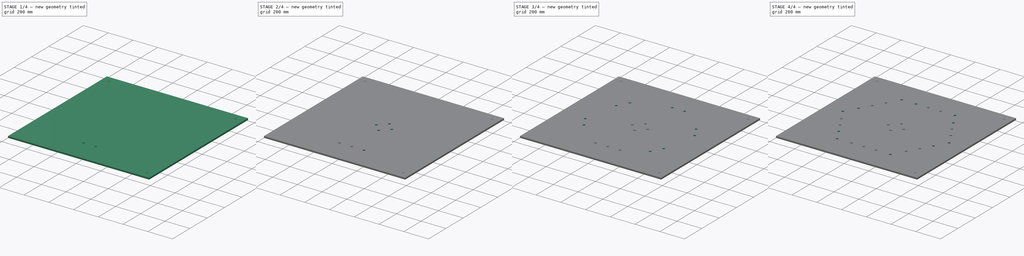
[diagram: build sequence overview — one tinted view per stage of 4, left to right]
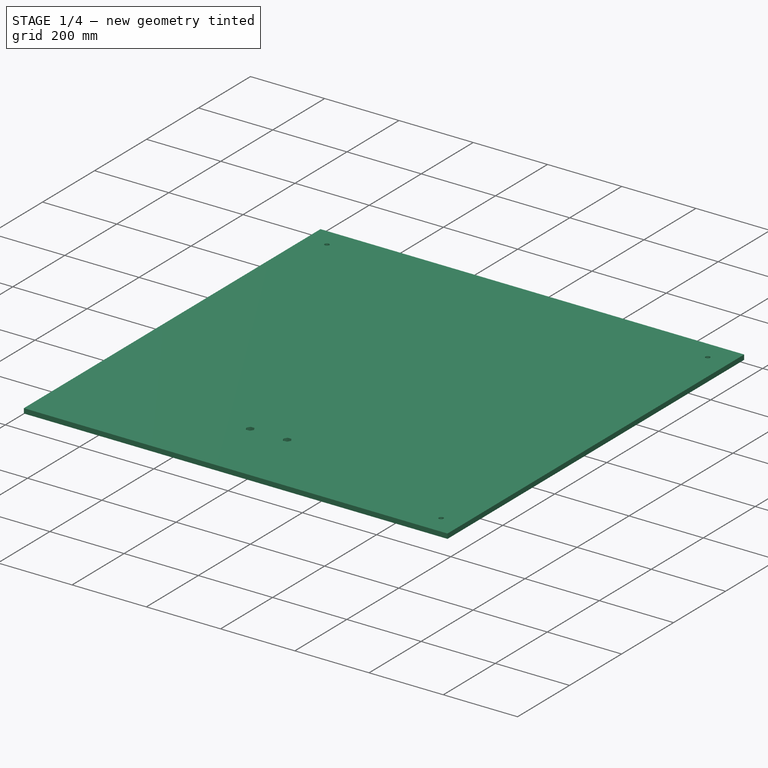
[diagram: stage 1 of 4 — iso view after this stage's code; geometry added in this stage tinted green]
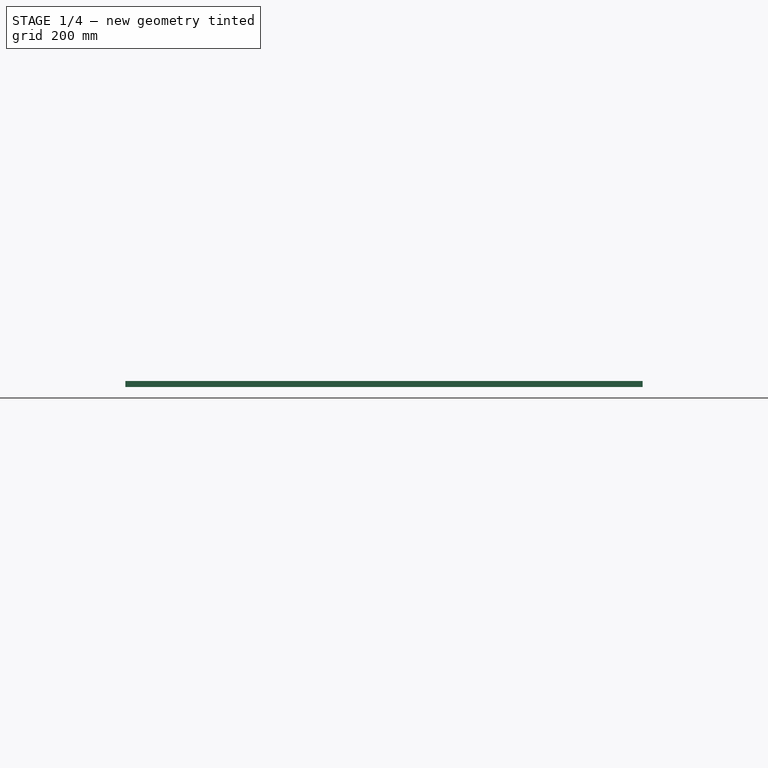
[diagram: stage 1 of 4 — front view after this stage's code; geometry added in this stage tinted green]
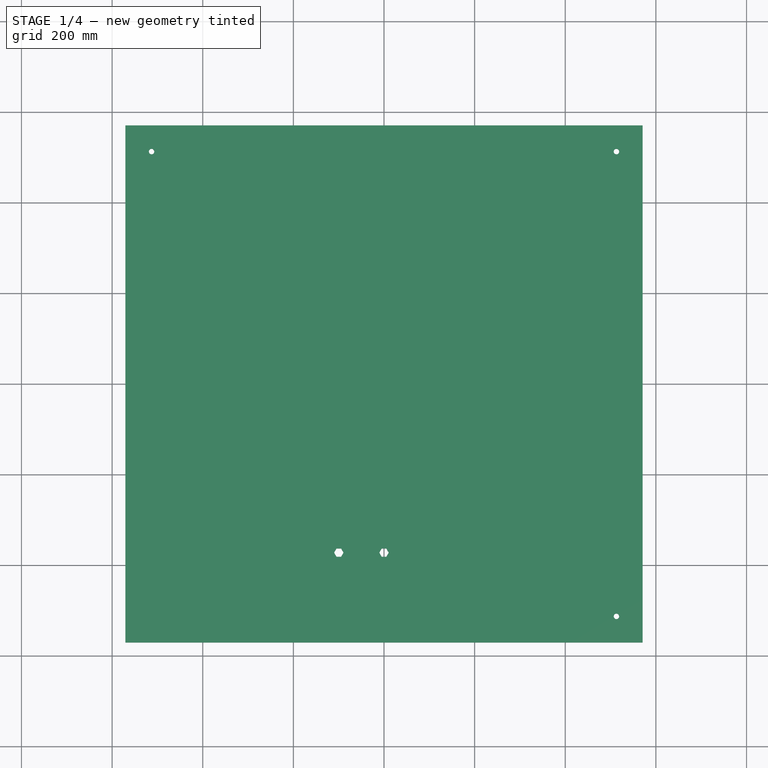
[diagram: stage 1 of 4 — top view after this stage's code; geometry added in this stage tinted green]
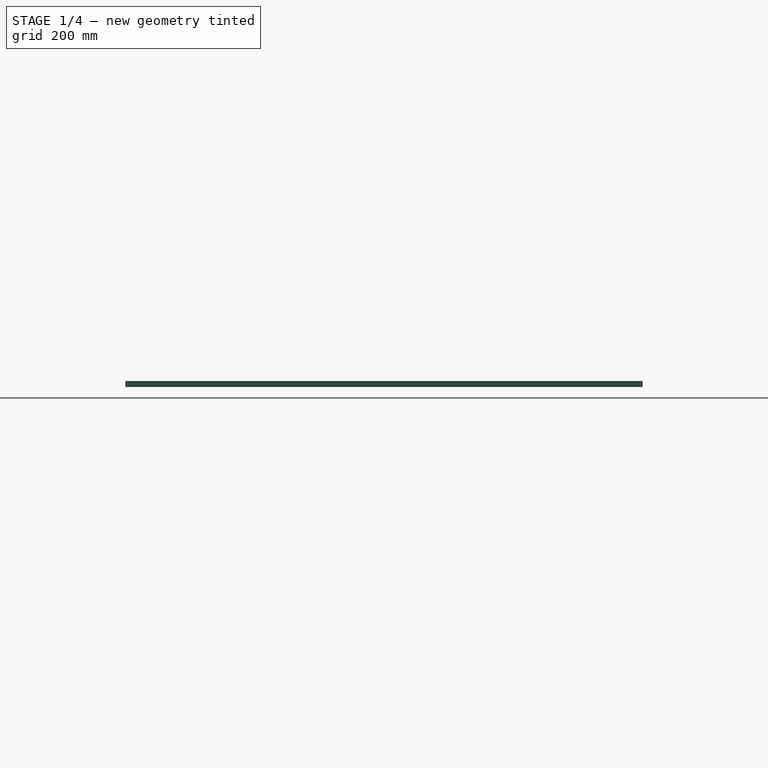
[diagram: stage 1 of 4 — right view after this stage's code; geometry added in this stage tinted green]
FCSTD DOCUMENT  (FreeCAD 1.0R39109 (Git))
Label: Stator_Mold_BoltHeadLayer_Hexagonal
License: All rights reserved
LicenseURL: http://en.wikipedia.org/wiki/All_rights_reserved
objects: App::Link×21, Part::FeaturePython×15, App::Part×6, Sketcher::SketchObject×5, PartDesign::Pocket×5, PartDesign::PolarPattern×5, PartDesign::Plane×1, PartDesign::SubShapeBinder×1, PartDesign::FeatureBase×1, Spreadsheet::Sheet×1, PartDesign::Body×1
note: 40 computed .brp shape members not serialized (recipe doc carries the construction recipe); baked Part::Feature solids carry a one-line shape summary decoded from their .brp
EXTERNAL_REF file=Stator_Mold_Base.FCStd obj=PocketBody
EXTERNAL_REF file=../../../Master_of_Puppets.FCStd obj=Alternator
EXTERNAL_REF file=../../../Master_of_Puppets.FCStd obj=Fastener
EXTERNAL_REF file=../../../Master_of_Puppets.FCStd obj=Spreadsheet
EXTERNAL_REF file=../../../Fasteners/Fastener_Bolt_StatorMold.FCStd obj=Binder
EXTERNAL_REF file=../../../Fasteners/Fastener_HexNut_StatorMold.FCStd obj=Binder
EXTERNAL_REF file=../../../Fasteners/Fastener_Washer_StatorMold.FCStd obj=Tube

FEATURE [PartDesign::Plane] DatumPlane001  label="DatumPlane"
  AttachmentOffset = pos=(0,0,13) rot=(0,0,1;0rad)
  AttachmentSupport = -> [XY_Plane]
  Length = 60
  MapMode = 5
  Placement = pos=(0,0,13) rot=(0,0,1;0rad)
  ResizeMode = 0
  Width = 60
  expr: .AttachmentOffset.Base.z = Spreadsheet.StatorThickness
FEATURE [Sketcher::SketchObject] Sketch006  label="FirstOuterBoltSketch"
  ArcFitTolerance = 0
  AttachmentSupport = -> [DatumPlane001]
  FullyConstrained = true
  MakeInternals = false
  MapMode = 5
  Placement = pos=(0,0,13) rot=(0,0,1;0rad)
  expr: Constraints[48] = Spreadsheet.LengthMiddleHoles
  expr: Constraints[52] = Spreadsheet.Inradius
  sketch-geometry (21):
    g0: LineSegment StartX=-94.545 StartY=-363.237 StartZ=0 EndX=-104.935 EndY=-363.237 EndZ=0
    g1: LineSegment StartX=-104.935 StartY=-363.237 StartZ=0 EndX=-110.13 EndY=-372.235 EndZ=0
    g2: LineSegment StartX=-110.13 StartY=-372.235 StartZ=0 EndX=-104.935 EndY=-381.233 EndZ=0
    g3: LineSegment StartX=-104.935 StartY=-381.233 StartZ=0 EndX=-94.545 EndY=-381.233 EndZ=0
    g4: LineSegment StartX=-94.545 StartY=-381.233 StartZ=0 EndX=-89.35 EndY=-372.235 EndZ=0
    g5: LineSegment StartX=-89.35 StartY=-372.235 StartZ=0 EndX=-94.545 EndY=-363.237 EndZ=0
    g6: Circle [constr] CenterX=-99.74 CenterY=-372.235 CenterZ=0 NormalX=0 NormalY=0 NormalZ=1 AngleXU=0 Radius=10.39
    g7: LineSegment [constr] StartX=-104.935 StartY=-363.237 StartZ=0 EndX=-99.74 EndY=-372.235 EndZ=0
    g8: LineSegment [constr] StartX=-99.74 StartY=-372.235 StartZ=0 EndX=-94.545 EndY=-381.233 EndZ=0
    g9: LineSegment [constr] StartX=-104.935 StartY=-381.233 StartZ=0 EndX=-99.74 EndY=-372.235 EndZ=0
    g10: LineSegment [constr] StartX=-99.74 StartY=-372.235 StartZ=0 EndX=-94.545 EndY=-363.237 EndZ=0
    g11: LineSegment [constr] StartX=-110.13 StartY=-372.235 StartZ=0 EndX=-99.74 EndY=-372.235 EndZ=0
    g12: LineSegment [constr] StartX=-99.74 StartY=-372.235 StartZ=0 EndX=-89.35 EndY=-372.235 EndZ=0
    g13: LineSegment [constr] StartX=214.91 StartY=372.235 StartZ=0 EndX=-214.91 EndY=372.235 EndZ=0
    g14: LineSegment [constr] StartX=-214.91 StartY=372.235 StartZ=0 EndX=-429.82 EndY=5.68e-14 EndZ=0
    g15: LineSegment [constr] StartX=-429.82 StartY=3.35e-14 StartZ=0 EndX=-214.91 EndY=-372.235 EndZ=0
    g16: LineSegment [constr] StartX=-214.91 StartY=-372.235 StartZ=0 EndX=214.91 EndY=-372.235 EndZ=0
    g17: LineSegment [constr] StartX=214.91 StartY=-372.235 StartZ=0 EndX=429.82 EndY=5.68e-14 EndZ=0
    g18: LineSegment [constr] StartX=429.82 StartY=3.35e-14 StartZ=0 EndX=214.91 EndY=372.235 EndZ=0
    g19: Circle [constr] CenterX=0 CenterY=0 CenterZ=0 NormalX=0 NormalY=0 NormalZ=1 AngleXU=0 Radius=429.82
    g20: LineSegment [constr] StartX=0 StartY=0 StartZ=0 EndX=-99.74 EndY=-372.235 EndZ=0
  constraints (51):
    c: Coincident(g0,g1)
    c: Coincident(g1,g2)
    c: Coincident(g2,g3)
    c: Coincident(g3,g4)
    c: Coincident(g4,g5)
    c: Coincident(g5,g0)
    c: PointOnObject(g0,g6)
    c: PointOnObject(g1,g6)
    c: PointOnObject(g2,g6)
    c: PointOnObject(g3,g6)
    c: PointOnObject(g4,g6)
    c: PointOnObject(g5,g6)
    c: Coincident(g0,g7)
    c: Coincident(g7,g6)
    c: Coincident(g7,g8)
    c: Coincident(g8,g3)
    c: Coincident(g2,g9)
    c: Coincident(g9,g7)
    c: Coincident(g9,g10)
    c: Coincident(g10,g0)
    c: Coincident(g1,g11)
    c: Coincident(g11,g7)
    c: Coincident(g11,g12)
    c: Coincident(g12,g4)
    c: Angle(g10,g7) = 1.0472
    c: Angle(g12,g10) = 1.0472
    c: Angle(g8,g12) = 1.0472
    c: Angle(g9,g8) = 1.0472
    c: Angle(g11,g9) = 1.0472
    c: Horizontal(g4,g1)
    c: Coincident(g13,g14)
    c: Coincident(g14,g15)
    c: Coincident(g15,g16)
    c: Coincident(g16,g17)
    c: Coincident(g17,g18)
    c: Coincident(g18,g13)
    c: Equal(g13, g14-g18) x5
    c: PointOnObject(g13,g19)
    c: PointOnObject(g14,g19)
    c: PointOnObject(g15,g19)
    c: PointOnObject(g16,g19)
    c: PointOnObject(g17,g19)
    c: PointOnObject(g18,g19)
    c: Coincident(g19,g-1)
    c: Radius(g19) = 429.82
    c: Horizontal(g14,g17)
    c: Coincident(g20,g-1)
    c: Coincident(g6,g20)
    c: Radius(g6) = 10.39
    c: PointOnObject(g6,g16)
    c: Angle(g-2,g20) = 2.87979
FEATURE [PartDesign::SubShapeBinder] Binder
  BindCopyOnChange = 0
  BindMode = 0
  ClaimChildren = true
  Context = -> Body [Binder.]
  Fuse = false
  MakeFace = true
  OffsetFill = false
  OffsetIntersection = false
  OffsetJoinType = 0
  OffsetOpenResult = false
  PartialLoad = false
  Refine = true
  Relative = true
  Support = -> [<external Stator_Mold_Base.FCStd>#PocketBody]
  _Version = 2
FEATURE [PartDesign::FeatureBase] BaseFeature
  BaseFeature = -> Binder
  Suppressed = false
FEATURE [PartDesign::Pocket] Pocket002  label="FirstOuterBoltPocket"
  BaseFeature = -> BaseFeature
  Direction = (0,0,-1)
  Length = 5
  Length2 = 100
  Profile = -> Sketch006
  Suppressed = false
  Type = 1
FEATURE [Spreadsheet::Sheet] Spreadsheet
  cells = A1='Inputs; A2='Spreadsheet; A3='StatorThickness; A4(StatorThickness)==Master_of_Puppets#Spreadsheet.StatorThickness; A5='Alternator; A6='LengthMiddleHoles; B6='StatorMoldBoltWidthAcrossCorners; C6='IslandInnerRadius; A7(LengthMiddleHoles)==Master_of_Puppets#Alternator.LengthMiddleHoles; B7(StatorMoldBoltWidthAcrossCorners)==Master_of_Puppets#Alternator.StatorMoldBoltWidthAcrossCorners; C7(IslandInnerRadius)==Master_of_Puppets#Alternator.IslandInnerRadius; A8='StatorMoldIslandNumberOfBolts; B8='LineFromBottomRightToBottomLeftCornerSlope; C8='LineFromBottomRightToBottomLeftCornerYIntercept; A9(StatorMoldIslandNumberOfBolts)==Master_of_Puppets#Alternator.StatorMoldIslandNumberOfBolts; B9(LineFromBottomRightToBottomLeftCornerSlope)==Master_of_Puppets#Alternator.LineFromBottomRightToBottomLeftCornerSlope; C9(LineFromBottomRightToBottomLeftCornerYIntercept)==Master_of_Puppets#Alternator.LineFromBottomRightToBottomLeftCornerYIntercept; A10='LocatingBolt1X; B10='LocatingBolt1Y; A11(LocatingBolt1X)==Master_of_Puppets#Alternator.LocatingBolt1X; B11(LocatingBolt1Y)==Master_of_Puppets#Alternator.LocatingBolt1Y; A12='LocatingBolt2X; B12='LocatingBolt2Y; A13(LocatingBolt2X)==Master_of_Puppets#Alternator.LocatingBolt2X; B13(LocatingBolt2Y)==Master_of_Puppets#Alternator.LocatingBolt2Y; A14='LocatingBolt3X; B14='LocatingBolt3Y; A15(LocatingBolt3X)==Master_of_Puppets#Alternator.LocatingBolt3X; B15(LocatingBolt3Y)==Master_of_Puppets#Alternator.LocatingBolt3Y; A16='FirstOuterBoltHolePolarPatternNumberOfOccurrences; B16='FirstOuterBoltHolePolarPatternAngle; A17(FirstOuterBoltHolePolarPatternNumberOfOccurrences)==Master_of_Puppets#Alternator.FirstOuterBoltHolePolarPatternNumberOfOccurrences; B17(FirstOuterBoltHolePolarPatternAngle)==Master_of_Puppets#Alternator.FirstOuterBoltHolePolarPatternAngle; A18='SecondOuterBoltHolePolarPatternNumberOfOccurrences; B18='SecondOuterBoltHolePolarPatternAngle; A19(SecondOuterBoltHolePolarPatternNumberOfOccurrences)==Master_of_Puppets#Alternator.SecondOuterBoltHolePolarPatternNumberOfOccurrences; B19(SecondOuterBoltHolePolarPatternAngle)==Master_of_Puppets#Alternator.SecondOuterBoltHolePolarPatternAngle; A20='Fastener; A21='HexNutThickness; B21='WasherThickness; A22(HexNutThickness)==Master_of_Puppets#Fastener.HexNutThickness; B22(WasherThickness)==Master_of_Puppets#Fastener.WasherThickness; A23='Calculated; A24='Inradius; B24='BoltZ; C24='BoltAngle; A25(Inradius)==StatorMoldBoltWidthAcrossCorners / 2; B25(BoltZ)==HexNutThickness; C25(BoltAngle)=30; A26='OuterBoltSpokeAngle; A27(OuterBoltSpokeAngle)==360 / 6 / 4; A28='OuterBolt1RadiusX; B28='OuterBolt1RadiusY; C28='OuterBolt1RadiusSlope; A29(OuterBolt1RadiusX)==LengthMiddleHoles * cos(OuterBoltSpokeAngle * 17); B29(OuterBolt1RadiusY)==LengthMiddleHoles * sin(OuterBoltSpokeAngle * 17); C29(OuterBolt1RadiusSlope)==OuterBolt1RadiusY / OuterBolt1RadiusX; A30='OuterBolt1X; B30='OuterBolt1Y; A31(OuterBolt1X)==LineFromBottomRightToBottomLeftCornerYIntercept / (OuterBolt1RadiusSlope - LineFromBottomRightToBottomLeftCornerSlope); B31(OuterBolt1Y)==OuterBolt1X * OuterBolt1RadiusSlope; A32='OuterBolt2RadiusX; B32='OuterBolt2RadiusY; C32='OuterBolt2RadiusSlope; A33(OuterBolt2RadiusX)==LengthMiddleHoles * cos(OuterBoltSpokeAngle * 18); B33(OuterBolt2RadiusY)==LengthMiddleHoles * sin(OuterBoltSpokeAngle * 18); C33(OuterBolt2RadiusSlope)==OuterBolt2RadiusY / OuterBolt2RadiusX; A34='OuterBolt2X; B34='OuterBolt2Y; A35(OuterBolt2X)==LineFromBottomRightToBottomLeftCornerYIntercept / (OuterBolt2RadiusSlope - LineFromBottomRightToBottomLeftCornerSlope); B35(OuterBolt2Y)==OuterBolt2X * OuterBolt2RadiusSlope; A36='OuterBolt3RadiusX; B36='OuterBolt3RadiusY; C36='OuterBolt3RadiusSlope; A37(OuterBolt3RadiusX)==LengthMiddleHoles * cos(OuterBoltSpokeAngle * 19); B37(OuterBolt3RadiusY)==LengthMiddleHoles * sin(OuterBoltSpokeAngle * 19); C37(OuterBolt3RadiusSlope)==OuterBolt3RadiusY / OuterBolt3RadiusX; A38='OuterBolt3X; B38='OuterBolt3Y; A39(OuterBolt3X)==LineFromBottomRightToBottomLeftCornerYIntercept / (OuterBolt3RadiusSlope - LineFromBottomRightToBottomLeftCornerSlope); B39(OuterBolt3Y)==OuterBolt3X * OuterBolt3RadiusSlope; A40='TopOfStatorMold; B40='HexNutZ; C40='Duplicated in Stator_Mold_BoltHeadLayer_Circular; A41(TopOfStatorMold)==StatorThickness * 4; B41(HexNutZ)==TopOfStatorMold + WasherThickness
FEATURE [Sketcher::SketchObject] Sketch  label="InnerBoltsSketch"
  ArcFitTolerance = 0
  AttachmentSupport = -> [DatumPlane001]
  FullyConstrained = true
  MakeInternals = false
  MapMode = 5
  Placement = pos=(0,0,13) rot=(0,0,1;0rad)
  expr: Constraints[1] = Spreadsheet.IslandInnerRadius
  expr: Constraints[31] = Spreadsheet.Inradius
  sketch-geometry (14):
    g0: Circle [constr] CenterX=0 CenterY=0 CenterZ=0 NormalX=0 NormalY=0 NormalZ=1 AngleXU=0 Radius=62.3444
    g1: LineSegment StartX=-5.195 StartY=53.3464 StartZ=0 EndX=5.195 EndY=53.3464 EndZ=0
    g2: LineSegment StartX=5.195 StartY=53.3464 StartZ=0 EndX=10.39 EndY=62.3444 EndZ=0
    g3: LineSegment StartX=10.39 StartY=62.3444 StartZ=0 EndX=5.195 EndY=71.3424 EndZ=0
    g4: LineSegment StartX=5.195 StartY=71.3424 StartZ=0 EndX=-5.195 EndY=71.3424 EndZ=0
    g5: LineSegment StartX=-5.195 StartY=71.3424 StartZ=0 EndX=-10.39 EndY=62.3444 EndZ=0
    g6: LineSegment StartX=-10.39 StartY=62.3444 StartZ=0 EndX=-5.195 EndY=53.3464 EndZ=0
    g7: Circle [constr] CenterX=0 CenterY=62.3444 CenterZ=0 NormalX=0 NormalY=0 NormalZ=1 AngleXU=0 Radius=10.39
    g8: LineSegment [constr] StartX=5.195 StartY=71.3424 StartZ=0 EndX=0 EndY=62.3444 EndZ=0
    g9: LineSegment [constr] StartX=0 StartY=62.3444 StartZ=0 EndX=-5.195 EndY=53.3464 EndZ=0
    g10: LineSegment [constr] StartX=5.195 StartY=53.3464 StartZ=0 EndX=0 EndY=62.3444 EndZ=0
    g11: LineSegment [constr] StartX=0 StartY=62.3444 StartZ=0 EndX=-5.195 EndY=71.3424 EndZ=0
    g12: LineSegment [constr] StartX=10.39 StartY=62.3444 StartZ=0 EndX=0 EndY=62.3444 EndZ=0
    g13: LineSegment [constr] StartX=0 StartY=62.3444 StartZ=0 EndX=-10.39 EndY=62.3444 EndZ=0
  constraints (35):
    c: Coincident(g0,g-1)
    c: Radius(g0) = 62.3444
    c: Coincident(g1,g2)
    c: Coincident(g2,g3)
    c: Coincident(g3,g4)
    c: Coincident(g4,g5)
    c: Coincident(g5,g6)
    c: Coincident(g6,g1)
    c: PointOnObject(g1,g7)
    c: PointOnObject(g2,g7)
    c: PointOnObject(g3,g7)
    c: PointOnObject(g4,g7)
    c: PointOnObject(g5,g7)
    c: PointOnObject(g6,g7)
    c: Coincident(g3,g8)
    c: Coincident(g8,g7)
    c: Coincident(g8,g9)
    c: Coincident(g9,g1)
    c: Coincident(g1,g10)
    c: Coincident(g10,g8)
    c: Coincident(g8,g11)
    c: Coincident(g11,g4)
    c: Coincident(g2,g12)
    c: Coincident(g13,g8)
    c: Coincident(g12,g8)
    c: Angle(g11,g13) = 1.0472
    c: Angle(g13,g9) = 1.0472
    c: Angle(g8,g11) = 1.0472
    c: Angle(g12,g8) = 1.0472
    c: Angle(g9,g10) = 1.0472
    c: Horizontal(g2,g5)
    c: Radius(g7) = 10.39
    c: PointOnObject(g7,g0)
    c: PointOnObject(g7,g-2)
    c: Coincident(g13,g5)
FEATURE [Sketcher::SketchObject] Sketch007  label="CornerBoltSketch"
  ArcFitTolerance = 0
  AttachmentSupport = -> [DatumPlane001]
  FullyConstrained = true
  MakeInternals = false
  MapMode = 5
  Placement = pos=(0,0,13) rot=(0,0,1;0rad)
  expr: Constraints[48] = Spreadsheet.LengthMiddleHoles
  expr: Constraints[50] = Spreadsheet.Inradius
  sketch-geometry (20):
    g0: LineSegment StartX=424.625 StartY=-8.998 StartZ=0 EndX=435.015 EndY=-8.998 EndZ=0
    g1: LineSegment StartX=435.015 StartY=-8.998 StartZ=0 EndX=440.21 EndY=5.86e-14 EndZ=0
    g2: LineSegment StartX=440.21 StartY=5.86e-14 StartZ=0 EndX=435.015 EndY=8.998 EndZ=0
    g3: LineSegment StartX=435.015 StartY=8.998 StartZ=0 EndX=424.625 EndY=8.998 EndZ=0
    g4: LineSegment StartX=424.625 StartY=8.998 StartZ=0 EndX=419.43 EndY=5.86e-14 EndZ=0
    g5: LineSegment StartX=419.43 StartY=5.86e-14 StartZ=0 EndX=424.625 EndY=-8.998 EndZ=0
    g6: Circle [constr] CenterX=429.82 CenterY=5.44e-14 CenterZ=0 NormalX=0 NormalY=0 NormalZ=1 AngleXU=0 Radius=10.39
    g7: LineSegment [constr] StartX=435.015 StartY=-8.998 StartZ=0 EndX=429.82 EndY=5.51e-14 EndZ=0
    g8: LineSegment [constr] StartX=429.82 StartY=5.44e-14 StartZ=0 EndX=424.625 EndY=8.998 EndZ=0
    g9: LineSegment [constr] StartX=435.015 StartY=8.998 StartZ=0 EndX=429.82 EndY=5.51e-14 EndZ=0
    g10: LineSegment [constr] StartX=429.82 StartY=5.44e-14 StartZ=0 EndX=424.625 EndY=-8.998 EndZ=0
    g11: LineSegment [constr] StartX=440.21 StartY=5.86e-14 StartZ=0 EndX=429.82 EndY=5.44e-14 EndZ=0
    g12: LineSegment [constr] StartX=429.82 StartY=5.44e-14 StartZ=0 EndX=419.43 EndY=5.86e-14 EndZ=0
    g13: LineSegment [constr] StartX=214.91 StartY=372.235 StartZ=0 EndX=-214.91 EndY=372.235 EndZ=0
    g14: LineSegment [constr] StartX=-214.91 StartY=372.235 StartZ=0 EndX=-429.82 EndY=5.68e-14 EndZ=0
    g15: LineSegment [constr] StartX=-429.82 StartY=5.44e-14 StartZ=0 EndX=-214.91 EndY=-372.235 EndZ=0
    g16: LineSegment [constr] StartX=-214.91 StartY=-372.235 StartZ=0 EndX=214.91 EndY=-372.235 EndZ=0
    g17: LineSegment [constr] StartX=214.91 StartY=-372.235 StartZ=0 EndX=429.82 EndY=5.68e-14 EndZ=0
    g18: LineSegment [constr] StartX=429.82 StartY=5.44e-14 StartZ=0 EndX=214.91 EndY=372.235 EndZ=0
    g19: Circle [constr] CenterX=0 CenterY=0 CenterZ=0 NormalX=0 NormalY=0 NormalZ=1 AngleXU=0 Radius=429.82
  constraints (48):
    c: Coincident(g0,g1)
    c: Coincident(g1,g2)
    c: Coincident(g2,g3)
    c: Coincident(g3,g4)
    c: Coincident(g4,g5)
    c: Coincident(g5,g0)
    c: PointOnObject(g0,g6)
    c: PointOnObject(g1,g6)
    c: PointOnObject(g2,g6)
    c: PointOnObject(g3,g6)
    c: PointOnObject(g4,g6)
    c: PointOnObject(g5,g6)
    c: Coincident(g0,g7)
    c: Coincident(g7,g6)
    c: Coincident(g7,g8)
    c: Coincident(g8,g3)
    c: Coincident(g2,g9)
    c: Coincident(g9,g7)
    c: Coincident(g9,g10)
    c: Coincident(g10,g0)
    c: Coincident(g1,g11)
    c: Coincident(g11,g7)
    c: Coincident(g11,g12)
    c: Coincident(g12,g4)
    c: Angle(g10,g7) = 1.0472
    c: Angle(g12,g10) = 1.0472
    c: Angle(g8,g12) = 1.0472
    c: Angle(g9,g8) = 1.0472
    c: Angle(g11,g9) = 1.0472
    c: Horizontal(g4,g1)
    c: Coincident(g13,g14)
    c: Coincident(g14,g15)
    c: Coincident(g15,g16)
    c: Coincident(g16,g17)
    c: Coincident(g17,g18)
    c: Coincident(g18,g13)
    c: Equal(g13, g14-g18) x5
    c: PointOnObject(g13,g19)
    c: PointOnObject(g14,g19)
    c: PointOnObject(g15,g19)
    c: PointOnObject(g16,g19)
    c: PointOnObject(g17,g19)
    c: PointOnObject(g18,g19)
    c: Coincident(g19,g-1)
    c: Radius(g19) = 429.82
    c: Horizontal(g14,g17)
    c: Radius(g6) = 10.39
    c: Coincident(g6,g17)
FEATURE [App::Link] Link  label="Fastener_Bolt_Inner"
  LinkPlacement = pos=(0,62.3444,0) rot=(0,0,1;0.523599rad)
  LinkedObject = -> <external ../../../Fasteners/Fastener_Bolt_StatorMold.FCStd>#Binder
  Placement = pos=(0,62.3444,0) rot=(0,0,1;0.523599rad)
  Scale = -1
  ScaleVector = (-1,-1,-1)
  expr: .Placement.Base.y = Spreadsheet.IslandInnerRadius
  expr: .Placement.Rotation.Angle = Spreadsheet.BoltAngle
FEATURE [Part::FeaturePython] Array  label="Bolts_Inner"  # Draft array (typed FeaturePython)
  AlwaysSyncPlacement = false
  Angle = 360
  ArrayType = 1
  Axis = (0,0,1)
  Base = -> Link
  Center = (0,0,0)
  Count = 4
  ExpandArray = false
  Fuse = false
  IntervalAxis = (0,0,0)
  IntervalX = (50,0,0)
  IntervalY = (0,50,0)
  IntervalZ = (0,0,50)
  NumberCircles = 3
  NumberPolar = 4
  NumberX = 2
  NumberY = 2
  NumberZ = 1
  PlacementList = 4 placements: [(0,62.3444,0),(-62.3444,1.38432e-14,0),(-7.63499e-15,-62.3444,0),(62.3444,-1.38432e-14,0)]
  RadialDistance = 50
  ScaleList = (4) [(1,1,1),(1,1,1),(1,1,1),(1,1,1)]
  Symmetry = 1
  TangentialDistance = 25
  expr: NumberPolar = Spreadsheet.StatorMoldIslandNumberOfBolts
FEATURE [App::Link] Link001  label="Fastener_Bolt_Outer1"
  LinkPlacement = pos=(-99.74,-372.235,0) rot=(0,0,1;0.523599rad)
  LinkedObject = -> Link
  Placement = pos=(-99.74,-372.235,0) rot=(0,0,1;0.523599rad)
  expr: .Placement.Base.x = Spreadsheet.OuterBolt1X
  expr: .Placement.Base.y = Spreadsheet.OuterBolt1Y
  expr: .Placement.Rotation.Angle = Spreadsheet.BoltAngle
FEATURE [App::Link] Link002  label="Fastener_Bolt_Outer2"
  LinkPlacement = pos=(-6.84e-14,-372.235,0) rot=(0,0,1;0.523599rad)
  LinkedObject = -> Link001
  Placement = pos=(-6.84e-14,-372.235,0) rot=(0,0,1;0.523599rad)
  expr: .Placement.Base.x = Spreadsheet.OuterBolt2X
  expr: .Placement.Base.y = Spreadsheet.OuterBolt2Y
  expr: .Placement.Rotation.Angle = Spreadsheet.BoltAngle
FEATURE [App::Link] Link003  label="Fastener_Bolt_Outer3"
  LinkPlacement = pos=(99.74,-372.235,0) rot=(0,0,1;0.523599rad)
  LinkedObject = -> Link002
  Placement = pos=(99.74,-372.235,0) rot=(0,0,1;0.523599rad)
  expr: .Placement.Base.x = Spreadsheet.OuterBolt3X
  expr: .Placement.Base.y = Spreadsheet.OuterBolt3Y
  expr: .Placement.Rotation.Angle = Spreadsheet.BoltAngle
FEATURE [App::Link] Link004  label="Fastener_Bolt_Corner"
  LinkPlacement = pos=(429.82,0,0) rot=(0,0,1;0.523599rad)
  LinkedObject = -> Link
  Placement = pos=(429.82,0,0) rot=(0,0,1;0.523599rad)
  expr: .Placement.Base.x = Spreadsheet.LengthMiddleHoles
  expr: .Placement.Rotation.Angle = Spreadsheet.BoltAngle
FEATURE [Part::FeaturePython] Array002  label="Bolts_Corner"  # Draft array (typed FeaturePython)
  AlwaysSyncPlacement = false
  Angle = 360
  ArrayType = 1
  Axis = (0,0,1)
  Base = -> Link004
  Center = (0,0,0)
  Count = 6
  ExpandArray = false
  Fuse = false
  IntervalAxis = (0,0,0)
  IntervalX = (50,0,0)
  IntervalY = (0,50,0)
  IntervalZ = (0,0,50)
  NumberCircles = 3
  NumberPolar = 6
  NumberX = 2
  NumberY = 2
  NumberZ = 1
  PlacementList = 6 placements: [(429.82,0,0),(214.91,372.235,0),(-214.91,372.235,0),(-429.82,5.26377e-14,0),(-214.91,-372.235,0),(214.91,-372.235,0)]
  RadialDistance = 50
  ScaleList = (6) [(1,1,1),(1,1,1),(1,1,1),(1,1,1),(1,1,1),(1,1,1)]
  Symmetry = 1
  TangentialDistance = 25
FEATURE [App::Link] Link005  label="Fastener_HexNut"
  LinkPlacement = pos=(0,62.3444,0) rot=(0,0,1;0rad)
  LinkedObject = -> <external ../../../Fasteners/Fastener_HexNut_StatorMold.FCStd>#Binder
  Placement = pos=(0,62.3444,0) rot=(0,0,1;0rad)
  expr: .Placement.Base.y = Spreadsheet.IslandInnerRadius
FEATURE [Part::FeaturePython] Array003  label="Nuts_Inner"  # Draft array (typed FeaturePython)
  AlwaysSyncPlacement = false
  Angle = 360
  ArrayType = 1
  Axis = (0,0,1)
  Base = -> Link005
  Center = (0,0,0)
  Count = 4
  ExpandArray = false
  Fuse = false
  IntervalAxis = (0,0,0)
  IntervalX = (50,0,0)
  IntervalY = (0,50,0)
  IntervalZ = (0,0,50)
  NumberCircles = 3
  NumberPolar = 4
  NumberX = 2
  NumberY = 2
  NumberZ = 1
  PlacementList = 4 placements: [(0,62.3444,0),(-62.3444,1.38432e-14,0),(-7.63499e-15,-62.3444,0),(62.3444,-1.38432e-14,0)]
  RadialDistance = 50
  ScaleList = (4) [(1,1,1),(1,1,1),(1,1,1),(1,1,1)]
  Symmetry = 1
  TangentialDistance = 25
  expr: NumberPolar = Spreadsheet.StatorMoldIslandNumberOfBolts
FEATURE [App::Link] Link006  label="Fastener_HexNut_Outer1"
  LinkPlacement = pos=(-99.74,-372.235,0) rot=(0,0,1;0rad)
  LinkedObject = -> Link005
  Placement = pos=(-99.74,-372.235,0) rot=(0,0,1;0rad)
  expr: .Placement.Base.x = Spreadsheet.OuterBolt1X
  expr: .Placement.Base.y = Spreadsheet.OuterBolt1Y
FEATURE [App::Link] Link007  label="Fastener_HexNut_Outer2"
  LinkPlacement = pos=(-6.84e-14,-372.235,0) rot=(0,0,1;0rad)
  LinkedObject = -> Link006
  Placement = pos=(-6.84e-14,-372.235,0) rot=(0,0,1;0rad)
  expr: .Placement.Base.x = Spreadsheet.OuterBolt2X
  expr: .Placement.Base.y = Spreadsheet.OuterBolt2Y
FEATURE [App::Link] Link008  label="Fastener_HexNut_Outer3"
  LinkPlacement = pos=(99.74,-372.235,0) rot=(0,0,1;0rad)
  LinkedObject = -> Link007
  Placement = pos=(99.74,-372.235,0) rot=(0,0,1;0rad)
  expr: .Placement.Base.x = Spreadsheet.OuterBolt3X
  expr: .Placement.Base.y = Spreadsheet.OuterBolt3Y
FEATURE [App::Link] Link009  label="Fastener_HexNut_Corner"
  LinkPlacement = pos=(429.82,0,0) rot=(0,0,1;0rad)
  LinkedObject = -> Link008
  Placement = pos=(429.82,0,0) rot=(0,0,1;0rad)
  expr: .Placement.Base.x = Spreadsheet.LengthMiddleHoles
FEATURE [Part::FeaturePython] Array005  label="Nuts_Corner"  # Draft array (typed FeaturePython)
  AlwaysSyncPlacement = false
  Angle = 360
  ArrayType = 1
  Axis = (0,0,1)
  Base = -> Link009
  Center = (0,0,0)
  Count = 6
  ExpandArray = false
  Fuse = false
  IntervalAxis = (0,0,0)
  IntervalX = (50,0,0)
  IntervalY = (0,50,0)
  IntervalZ = (0,0,50)
  NumberCircles = 3
  NumberPolar = 6
  NumberX = 2
  NumberY = 2
  NumberZ = 1
  PlacementList = 6 placements: [(429.82,0,0),(214.91,372.235,0),(-214.91,372.235,0),(-429.82,5.26377e-14,0),(-214.91,-372.235,0),(214.91,-372.235,0)]
  RadialDistance = 50
  ScaleList = (6) [(1,1,1),(1,1,1),(1,1,1),(1,1,1),(1,1,1),(1,1,1)]
  Symmetry = 1
  TangentialDistance = 25
FEATURE [App::Link] Link010  label="Fastener_HexNut1"
  LinkPlacement = pos=(-512.897,512.897,0) rot=(0,0,1;0rad)
  LinkedObject = -> <external ../../../Fasteners/Fastener_HexNut_StatorMold.FCStd>#Binder
  Placement = pos=(-512.897,512.897,0) rot=(0,0,1;0rad)
  expr: .Placement.Base.x = Spreadsheet.LocatingBolt1X
  expr: .Placement.Base.y = Spreadsheet.LocatingBolt1Y
FEATURE [App::Link] Link011  label="Fastener_HexNut2"
  LinkPlacement = pos=(512.897,512.897,0) rot=(0,0,1;0rad)
  LinkedObject = -> Link010
  Placement = pos=(512.897,512.897,0) rot=(0,0,1;0rad)
  expr: .Placement.Base.x = Spreadsheet.LocatingBolt2X
  expr: .Placement.Base.y = Spreadsheet.LocatingBolt2Y
FEATURE [App::Link] Link012  label="Fastener_HexNut3"
  LinkPlacement = pos=(512.897,-512.897,0) rot=(0,0,1;0rad)
  LinkedObject = -> Link011
  Placement = pos=(512.897,-512.897,0) rot=(0,0,1;0rad)
  expr: .Placement.Base.x = Spreadsheet.LocatingBolt3X
  expr: .Placement.Base.y = Spreadsheet.LocatingBolt3Y
FEATURE [App::Part] Part006  label="Nuts_Locating"
  Group = -> [Link010,Link011,Link012]
  Origin = -> Origin007
FEATURE [App::Link] Link013  label="Washer_Inner"
  LinkPlacement = pos=(0,62.3444,0) rot=(0,0,1;0rad)
  LinkedObject = -> <external ../../../Fasteners/Fastener_Washer_StatorMold.FCStd>#Tube
  Placement = pos=(0,62.3444,0) rot=(0,0,1;0rad)
  expr: .Placement.Base.y = Spreadsheet.IslandInnerRadius
FEATURE [App::Link] Link014  label="Washer_Outer1"
  LinkPlacement = pos=(-99.74,-372.235,0) rot=(0,0,1;0rad)
  LinkedObject = -> <external ../../../Fasteners/Fastener_Washer_StatorMold.FCStd>#Tube
  Placement = pos=(-99.74,-372.235,0) rot=(0,0,1;0rad)
  expr: .Placement.Base.x = Spreadsheet.OuterBolt1X
  expr: .Placement.Base.y = Spreadsheet.OuterBolt1Y
FEATURE [App::Link] Link015  label="Washer_Outer2"
  LinkPlacement = pos=(-6.84e-14,-372.235,0) rot=(0,0,1;0rad)
  LinkedObject = -> <external ../../../Fasteners/Fastener_Washer_StatorMold.FCStd>#Tube
  Placement = pos=(-6.84e-14,-372.235,0) rot=(0,0,1;0rad)
  expr: .Placement.Base.x = Spreadsheet.OuterBolt2X
  expr: .Placement.Base.y = Spreadsheet.OuterBolt2Y
FEATURE [App::Link] Link016  label="Washer_Outer3"
  LinkPlacement = pos=(99.74,-372.235,0) rot=(0,0,1;0rad)
  LinkedObject = -> <external ../../../Fasteners/Fastener_Washer_StatorMold.FCStd>#Tube
  Placement = pos=(99.74,-372.235,0) rot=(0,0,1;0rad)
  expr: .Placement.Base.x = Spreadsheet.OuterBolt3X
  expr: .Placement.Base.y = Spreadsheet.OuterBolt3Y
FEATURE [App::Link] Link017  label="Washer_Corner"
  LinkPlacement = pos=(429.82,0,0) rot=(0,0,1;0rad)
  LinkedObject = -> <external ../../../Fasteners/Fastener_Washer_StatorMold.FCStd>#Tube
  Placement = pos=(429.82,0,0) rot=(0,0,1;0rad)
  expr: .Placement.Base.x = Spreadsheet.LengthMiddleHoles
FEATURE [App::Link] Link018  label="Washer_Locating1"
  LinkPlacement = pos=(-512.897,512.897,0) rot=(0,0,1;0rad)
  LinkedObject = -> <external ../../../Fasteners/Fastener_Washer_StatorMold.FCStd>#Tube
  Placement = pos=(-512.897,512.897,0) rot=(0,0,1;0rad)
  expr: .Placement.Base.x = Spreadsheet.LocatingBolt1X
  expr: .Placement.Base.y = Spreadsheet.LocatingBolt1Y
FEATURE [App::Link] Link019  label="Washer_Locating2"
  LinkPlacement = pos=(512.897,512.897,0) rot=(0,0,1;0rad)
  LinkedObject = -> <external ../../../Fasteners/Fastener_Washer_StatorMold.FCStd>#Tube
  Placement = pos=(512.897,512.897,0) rot=(0,0,1;0rad)
  expr: .Placement.Base.x = Spreadsheet.LocatingBolt2X
  expr: .Placement.Base.y = Spreadsheet.LocatingBolt2Y
FEATURE [App::Link] Link020  label="Washer_Locating3"
  LinkPlacement = pos=(512.897,-512.897,0) rot=(0,0,1;0rad)
  LinkedObject = -> <external ../../../Fasteners/Fastener_Washer_StatorMold.FCStd>#Tube
  Placement = pos=(512.897,-512.897,0) rot=(0,0,1;0rad)
  expr: .Placement.Base.x = Spreadsheet.LocatingBolt3X
  expr: .Placement.Base.y = Spreadsheet.LocatingBolt3Y
FEATURE [App::Part] Part009  label="Washers_Locating"
  Group = -> [Link018,Link019,Link020]
  Origin = -> Origin010
FEATURE [Part::FeaturePython] Array006  label="Washers_Inner"  # Draft array (typed FeaturePython)
  AlwaysSyncPlacement = false
  Angle = 360
  ArrayType = 1
  Axis = (0,0,1)
  Base = -> Link013
  Center = (0,0,0)
  Count = 4
  ExpandArray = false
  Fuse = false
  IntervalAxis = (0,0,0)
  IntervalX = (50,0,0)
  IntervalY = (0,50,0)
  IntervalZ = (0,0,50)
  NumberCircles = 3
  NumberPolar = 4
  NumberX = 2
  NumberY = 2
  NumberZ = 1
  PlacementList = 4 placements: [(0,62.3444,0),(-62.3444,1.38432e-14,0),(-7.63499e-15,-62.3444,0),(62.3444,-1.38432e-14,0)]
  RadialDistance = 50
  ScaleList = (4) [(1,1,1),(1,1,1),(1,1,1),(1,1,1)]
  Symmetry = 1
  TangentialDistance = 25
  expr: NumberPolar = Spreadsheet.StatorMoldIslandNumberOfBolts
FEATURE [Part::FeaturePython] Array008  label="Washers_Corner"  # Draft array (typed FeaturePython)
  AlwaysSyncPlacement = false
  Angle = 360
  ArrayType = 1
  Axis = (0,0,1)
  Base = -> Link017
  Center = (0,0,0)
  Count = 6
  ExpandArray = false
  Fuse = false
  IntervalAxis = (0,0,0)
  IntervalX = (50,0,0)
  IntervalY = (0,50,0)
  IntervalZ = (0,0,50)
  NumberCircles = 3
  NumberPolar = 6
  NumberX = 2
  NumberY = 2
  NumberZ = 1
  PlacementList = 6 placements: [(429.82,0,0),(214.91,372.235,0),(-214.91,372.235,0),(-429.82,5.26377e-14,0),(-214.91,-372.235,0),(214.91,-372.235,0)]
  RadialDistance = 50
  ScaleList = (6) [(1,1,1),(1,1,1),(1,1,1),(1,1,1),(1,1,1),(1,1,1)]
  Symmetry = 1
  TangentialDistance = 25
FEATURE [Part::FeaturePython] Array009  label="Bolts_Outer1"  # Draft array (typed FeaturePython)
  AlwaysSyncPlacement = false
  Angle = 360
  ArrayType = 1
  Axis = (0,0,1)
  Base = -> Link001
  Center = (0,0,0)
  Count = 6
  ExpandArray = false
  Fuse = false
  IntervalAxis = (0,0,0)
  IntervalX = (50,0,0)
  IntervalY = (0,50,0)
  IntervalZ = (0,0,50)
  NumberCircles = 3
  NumberPolar = 6
  NumberX = 2
  NumberY = 2
  NumberZ = 1
  PlacementList = 6 placements: [(-99.74,-372.235,0),(272.495,-272.495,0),(372.235,99.74,0),(99.74,372.235,0),(-272.495,272.495,0),(-372.235,-99.74,0)]
  RadialDistance = 50
  ScaleList = (6) [(1,1,1),(1,1,1),(1,1,1),(1,1,1),(1,1,1),(1,1,1)]
  Symmetry = 1
  TangentialDistance = 25
  expr: Angle = Spreadsheet.FirstOuterBoltHolePolarPatternAngle
  expr: NumberPolar = Spreadsheet.FirstOuterBoltHolePolarPatternNumberOfOccurrences
FEATURE [Part::FeaturePython] Array010  label="Bolts_Outer2"  # Draft array (typed FeaturePython)
  AlwaysSyncPlacement = false
  Angle = 360
  ArrayType = 1
  Axis = (0,0,1)
  Base = -> Link002
  Center = (0,0,0)
  Count = 6
  ExpandArray = false
  Fuse = false
  IntervalAxis = (0,0,0)
  IntervalX = (50,0,0)
  IntervalY = (0,50,0)
  IntervalZ = (0,0,50)
  NumberCircles = 3
  NumberPolar = 6
  NumberX = 2
  NumberY = 2
  NumberZ = 1
  PlacementList = 6 placements: [(-6.83784e-14,-372.235,0),(322.365,-186.117,0),(322.365,186.117,0),(1.13964e-13,372.235,0),(-322.365,186.117,0),(-322.365,-186.117,0)]
  RadialDistance = 50
  ScaleList = (6) [(1,1,1),(1,1,1),(1,1,1),(1,1,1),(1,1,1),(1,1,1)]
  Symmetry = 1
  TangentialDistance = 25
  expr: Angle = Spreadsheet.SecondOuterBoltHolePolarPatternAngle
  expr: NumberPolar = Spreadsheet.SecondOuterBoltHolePolarPatternNumberOfOccurrences
FEATURE [Part::FeaturePython] Array011  label="Bolts_Outer3"  # Draft array (typed FeaturePython)
  AlwaysSyncPlacement = false
  Angle = 360
  ArrayType = 1
  Axis = (0,0,1)
  Base = -> Link003
  Center = (0,0,0)
  Count = 6
  ExpandArray = false
  Fuse = false
  IntervalAxis = (0,0,0)
  IntervalX = (50,0,0)
  IntervalY = (0,50,0)
  IntervalZ = (0,0,50)
  NumberCircles = 3
  NumberPolar = 6
  NumberX = 2
  NumberY = 2
  NumberZ = 1
  PlacementList = 6 placements: [(99.74,-372.235,0),(372.235,-99.74,0),(272.495,272.495,0),(-99.74,372.235,0),(-372.235,99.74,0),(-272.495,-272.495,0)]
  RadialDistance = 50
  ScaleList = (6) [(1,1,1),(1,1,1),(1,1,1),(1,1,1),(1,1,1),(1,1,1)]
  Symmetry = 1
  TangentialDistance = 25
FEATURE [App::Part] Part001  label="Bolts"
  Group = -> [Link,Array,Link004,Array002,Link001,Link002,Link003,Array009,Array010,Array011]
  Origin = -> Origin002
  Placement = pos=(0,0,11.83) rot=(0,0,1;0rad)
  expr: .Placement.Base.z = Spreadsheet.BoltZ
FEATURE [Part::FeaturePython] Array012  label="Washers_Outer1"  # Draft array (typed FeaturePython)
  AlwaysSyncPlacement = false
  Angle = 360
  ArrayType = 1
  Axis = (0,0,1)
  Base = -> Link014
  Center = (0,0,0)
  Count = 6
  ExpandArray = false
  Fuse = false
  IntervalAxis = (0,0,0)
  IntervalX = (50,0,0)
  IntervalY = (0,50,0)
  IntervalZ = (0,0,50)
  NumberCircles = 3
  NumberPolar = 6
  NumberX = 2
  NumberY = 2
  NumberZ = 1
  PlacementList = 6 placements: [(-99.74,-372.235,0),(272.495,-272.495,0),(372.235,99.74,0),(99.74,372.235,0),(-272.495,272.495,0),(-372.235,-99.74,0)]
  RadialDistance = 50
  ScaleList = (6) [(1,1,1),(1,1,1),(1,1,1),(1,1,1),(1,1,1),(1,1,1)]
  Symmetry = 1
  TangentialDistance = 25
  expr: Angle = Spreadsheet.FirstOuterBoltHolePolarPatternAngle
  expr: NumberPolar = Spreadsheet.FirstOuterBoltHolePolarPatternNumberOfOccurrences
FEATURE [Part::FeaturePython] Array013  label="Washers_Outer2"  # Draft array (typed FeaturePython)
  AlwaysSyncPlacement = false
  Angle = 360
  ArrayType = 1
  Axis = (0,0,1)
  Base = -> Link015
  Center = (0,0,0)
  Count = 6
  ExpandArray = false
  Fuse = false
  IntervalAxis = (0,0,0)
  IntervalX = (50,0,0)
  IntervalY = (0,50,0)
  IntervalZ = (0,0,50)
  NumberCircles = 3
  NumberPolar = 6
  NumberX = 2
  NumberY = 2
  NumberZ = 1
  PlacementList = 6 placements: [(-6.83784e-14,-372.235,0),(322.365,-186.117,0),(322.365,186.117,0),(1.13964e-13,372.235,0),(-322.365,186.117,0),(-322.365,-186.117,0)]
  RadialDistance = 50
  ScaleList = (6) [(1,1,1),(1,1,1),(1,1,1),(1,1,1),(1,1,1),(1,1,1)]
  Symmetry = 1
  TangentialDistance = 25
  expr: Angle = Spreadsheet.SecondOuterBoltHolePolarPatternAngle
  expr: NumberPolar = Spreadsheet.SecondOuterBoltHolePolarPatternNumberOfOccurrences
FEATURE [Part::FeaturePython] Array014  label="Washers_Outer3"  # Draft array (typed FeaturePython)
  AlwaysSyncPlacement = false
  Angle = 360
  ArrayType = 1
  Axis = (0,0,1)
  Base = -> Link016
  Center = (0,0,0)
  Count = 6
  ExpandArray = false
  Fuse = false
  IntervalAxis = (0,0,0)
  IntervalX = (50,0,0)
  IntervalY = (0,50,0)
  IntervalZ = (0,0,50)
  NumberCircles = 3
  NumberPolar = 6
  NumberX = 2
  NumberY = 2
  NumberZ = 1
  PlacementList = 6 placements: [(99.74,-372.235,0),(372.235,-99.74,0),(272.495,272.495,0),(-99.74,372.235,0),(-372.235,99.74,0),(-272.495,-272.495,0)]
  RadialDistance = 50
  ScaleList = (6) [(1,1,1),(1,1,1),(1,1,1),(1,1,1),(1,1,1),(1,1,1)]
  Symmetry = 1
  TangentialDistance = 25
FEATURE [App::Part] Part007  label="Washers"
  Group = -> [Link013,Array006,Link017,Array008,Part009,Link014,Link015,Link016,Array012,Array013,Array014]
  Origin = -> Origin008
  Placement = pos=(0,0,52) rot=(0,0,1;0rad)
  expr: .Placement.Base.z = Spreadsheet.TopOfStatorMold
FEATURE [Part::FeaturePython] Array015  label="Nuts_Outer1"  # Draft array (typed FeaturePython)
  AlwaysSyncPlacement = false
  Angle = 360
  ArrayType = 1
  Axis = (0,0,1)
  Base = -> Link006
  Center = (0,0,0)
  Count = 6
  ExpandArray = false
  Fuse = false
  IntervalAxis = (0,0,0)
  IntervalX = (50,0,0)
  IntervalY = (0,50,0)
  IntervalZ = (0,0,50)
  NumberCircles = 3
  NumberPolar = 6
  NumberX = 2
  NumberY = 2
  NumberZ = 1
  PlacementList = 6 placements: [(-99.74,-372.235,0),(272.495,-272.495,0),(372.235,99.74,0),(99.74,372.235,0),(-272.495,272.495,0),(-372.235,-99.74,0)]
  RadialDistance = 50
  ScaleList = (6) [(1,1,1),(1,1,1),(1,1,1),(1,1,1),(1,1,1),(1,1,1)]
  Symmetry = 1
  TangentialDistance = 25
  expr: Angle = Spreadsheet.FirstOuterBoltHolePolarPatternAngle
  expr: NumberPolar = Spreadsheet.FirstOuterBoltHolePolarPatternNumberOfOccurrences
FEATURE [Part::FeaturePython] Array016  label="Nuts_Outer2"  # Draft array (typed FeaturePython)
  AlwaysSyncPlacement = false
  Angle = 360
  ArrayType = 1
  Axis = (0,0,1)
  Base = -> Link007
  Center = (0,0,0)
  Count = 6
  ExpandArray = false
  Fuse = false
  IntervalAxis = (0,0,0)
  IntervalX = (50,0,0)
  IntervalY = (0,50,0)
  IntervalZ = (0,0,50)
  NumberCircles = 3
  NumberPolar = 6
  NumberX = 2
  NumberY = 2
  NumberZ = 1
  PlacementList = 6 placements: [(-6.83784e-14,-372.235,0),(322.365,-186.117,0),(322.365,186.117,0),(1.13964e-13,372.235,0),(-322.365,186.117,0),(-322.365,-186.117,0)]
  RadialDistance = 50
  ScaleList = (6) [(1,1,1),(1,1,1),(1,1,1),(1,1,1),(1,1,1),(1,1,1)]
  Symmetry = 1
  TangentialDistance = 25
  expr: Angle = Spreadsheet.SecondOuterBoltHolePolarPatternAngle
  expr: NumberPolar = Spreadsheet.SecondOuterBoltHolePolarPatternNumberOfOccurrences
FEATURE [Part::FeaturePython] Array017  label="Nuts_Outer3"  # Draft array (typed FeaturePython)
  AlwaysSyncPlacement = false
  Angle = 360
  ArrayType = 1
  Axis = (0,0,1)
  Base = -> Link008
  Center = (0,0,0)
  Count = 6
  ExpandArray = false
  Fuse = false
  IntervalAxis = (0,0,0)
  IntervalX = (50,0,0)
  IntervalY = (0,50,0)
  IntervalZ = (0,0,50)
  NumberCircles = 3
  NumberPolar = 6
  NumberX = 2
  NumberY = 2
  NumberZ = 1
  PlacementList = 6 placements: [(99.74,-372.235,0),(372.235,-99.74,0),(272.495,272.495,0),(-99.74,372.235,0),(-372.235,99.74,0),(-272.495,-272.495,0)]
  RadialDistance = 50
  ScaleList = (6) [(1,1,1),(1,1,1),(1,1,1),(1,1,1),(1,1,1),(1,1,1)]
  Symmetry = 1
  TangentialDistance = 25
FEATURE [App::Part] Part004  label="Nuts"
  Group = -> [Link005,Array003,Link009,Array005,Part006,Array015,Array016,Array017,Link006,Link007,Link008]
  Origin = -> Origin005
  Placement = pos=(0,0,54.5) rot=(0,0,1;0rad)
  expr: .Placement.Base.z = Spreadsheet.HexNutZ
FEATURE [Sketcher::SketchObject] Sketch008  label="SecondOuterBoltSketch"
  ArcFitTolerance = 0
  AttachmentSupport = -> [DatumPlane001]
  FullyConstrained = true
  MakeInternals = false
  MapMode = 5
  Placement = pos=(0,0,13) rot=(0,0,1;0rad)
  expr: Constraints[48] = Spreadsheet.LengthMiddleHoles
  expr: Constraints[50] = Spreadsheet.Inradius
  sketch-geometry (20):
    g0: LineSegment StartX=5.195 StartY=-363.237 StartZ=0 EndX=-5.195 EndY=-363.237 EndZ=0
    g1: LineSegment StartX=-5.195 StartY=-363.237 StartZ=0 EndX=-10.39 EndY=-372.235 EndZ=0
    g2: LineSegment StartX=-10.39 StartY=-372.235 StartZ=0 EndX=-5.195 EndY=-381.233 EndZ=0
    g3: LineSegment StartX=-5.195 StartY=-381.233 StartZ=0 EndX=5.195 EndY=-381.233 EndZ=0
    g4: LineSegment StartX=5.195 StartY=-381.233 StartZ=0 EndX=10.39 EndY=-372.235 EndZ=0
    g5: LineSegment StartX=10.39 StartY=-372.235 StartZ=0 EndX=5.195 EndY=-363.237 EndZ=0
    g6: Circle [constr] CenterX=0 CenterY=-372.235 CenterZ=0 NormalX=0 NormalY=0 NormalZ=1 AngleXU=0 Radius=10.39
    g7: LineSegment [constr] StartX=-5.195 StartY=-363.237 StartZ=0 EndX=0 EndY=-372.235 EndZ=0
    g8: LineSegment [constr] StartX=0 StartY=-372.235 StartZ=0 EndX=5.195 EndY=-381.233 EndZ=0
    g9: LineSegment [constr] StartX=-5.195 StartY=-381.233 StartZ=0 EndX=0 EndY=-372.235 EndZ=0
    g10: LineSegment [constr] StartX=0 StartY=-372.235 StartZ=0 EndX=5.195 EndY=-363.237 EndZ=0
    g11: LineSegment [constr] StartX=-10.39 StartY=-372.235 StartZ=0 EndX=0 EndY=-372.235 EndZ=0
    g12: LineSegment [constr] StartX=0 StartY=-372.235 StartZ=0 EndX=10.39 EndY=-372.235 EndZ=0
    g13: LineSegment [constr] StartX=214.91 StartY=372.235 StartZ=0 EndX=-214.91 EndY=372.235 EndZ=0
    g14: LineSegment [constr] StartX=-214.91 StartY=372.235 StartZ=0 EndX=-429.82 EndY=0 EndZ=0
    g15: LineSegment [constr] StartX=-429.82 StartY=-1.37e-14 StartZ=0 EndX=-214.91 EndY=-372.235 EndZ=0
    g16: LineSegment [constr] StartX=-214.91 StartY=-372.235 StartZ=0 EndX=214.91 EndY=-372.235 EndZ=0
    g17: LineSegment [constr] StartX=214.91 StartY=-372.235 StartZ=0 EndX=429.82 EndY=0 EndZ=0
    g18: LineSegment [constr] StartX=429.82 StartY=-1.37e-14 StartZ=0 EndX=214.91 EndY=372.235 EndZ=0
    g19: Circle [constr] CenterX=0 CenterY=0 CenterZ=0 NormalX=0 NormalY=0 NormalZ=1 AngleXU=0 Radius=429.82
  constraints (49):
    c: Coincident(g0,g1)
    c: Coincident(g1,g2)
    c: Coincident(g2,g3)
    c: Coincident(g3,g4)
    c: Coincident(g4,g5)
    c: Coincident(g5,g0)
    c: PointOnObject(g0,g6)
    c: PointOnObject(g1,g6)
    c: PointOnObject(g2,g6)
    c: PointOnObject(g3,g6)
    c: PointOnObject(g4,g6)
    c: PointOnObject(g5,g6)
    c: Coincident(g0,g7)
    c: Coincident(g7,g6)
    c: Coincident(g7,g8)
    c: Coincident(g8,g3)
    c: Coincident(g2,g9)
    c: Coincident(g9,g7)
    c: Coincident(g9,g10)
    c: Coincident(g10,g0)
    c: Coincident(g1,g11)
    c: Coincident(g11,g7)
    c: Coincident(g11,g12)
    c: Coincident(g12,g4)
    c: Angle(g10,g7) = 1.0472
    c: Angle(g12,g10) = 1.0472
    c: Angle(g8,g12) = 1.0472
    c: Angle(g9,g8) = 1.0472
    c: Angle(g11,g9) = 1.0472
    c: Horizontal(g4,g1)
    c: Coincident(g13,g14)
    c: Coincident(g14,g15)
    c: Coincident(g15,g16)
    c: Coincident(g16,g17)
    c: Coincident(g17,g18)
    c: Coincident(g18,g13)
    c: Equal(g13, g14-g18) x5
    c: PointOnObject(g13,g19)
    c: PointOnObject(g14,g19)
    c: PointOnObject(g15,g19)
    c: PointOnObject(g16,g19)
    c: PointOnObject(g17,g19)
    c: PointOnObject(g18,g19)
    c: Coincident(g19,g-1)
    c: Radius(g19) = 429.82
    c: Horizontal(g14,g17)
    c: Radius(g6) = 10.39
    c: PointOnObject(g6,g16)
    c: PointOnObject(g6,g-2)
FEATURE [PartDesign::Pocket] Pocket004  label="SecondOuterBoltPocket"
  BaseFeature = -> Pocket002
  Direction = (0,0,-1)
  Length = 5
  Length2 = 5
  Profile = -> Sketch008
  ReferenceAxis = -> Sketch008 [N_Axis]
  Refine = true
  Suppressed = false
  Type = 1
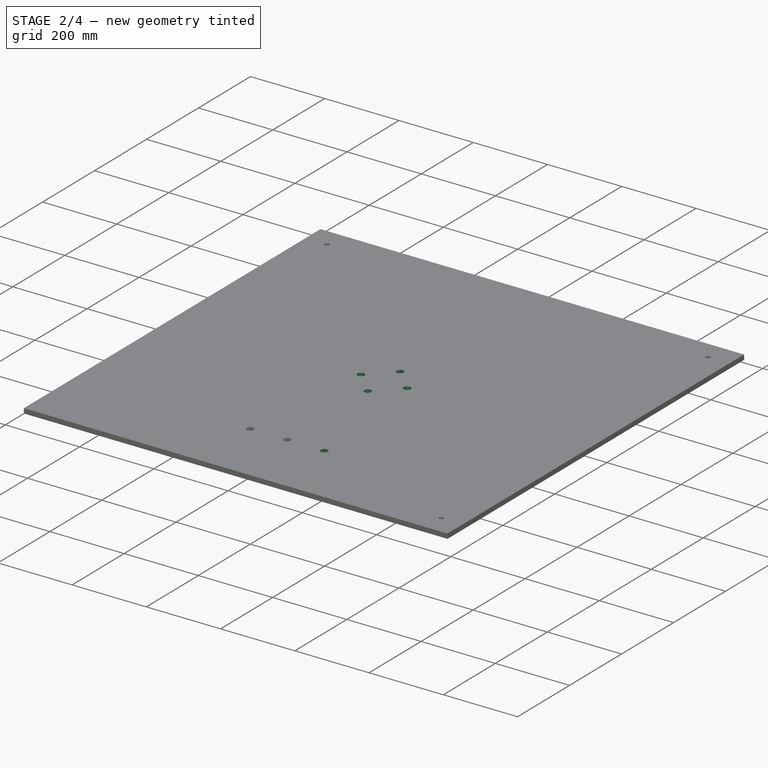
[diagram: stage 2 of 4 — iso view after this stage's code; geometry added in this stage tinted green]
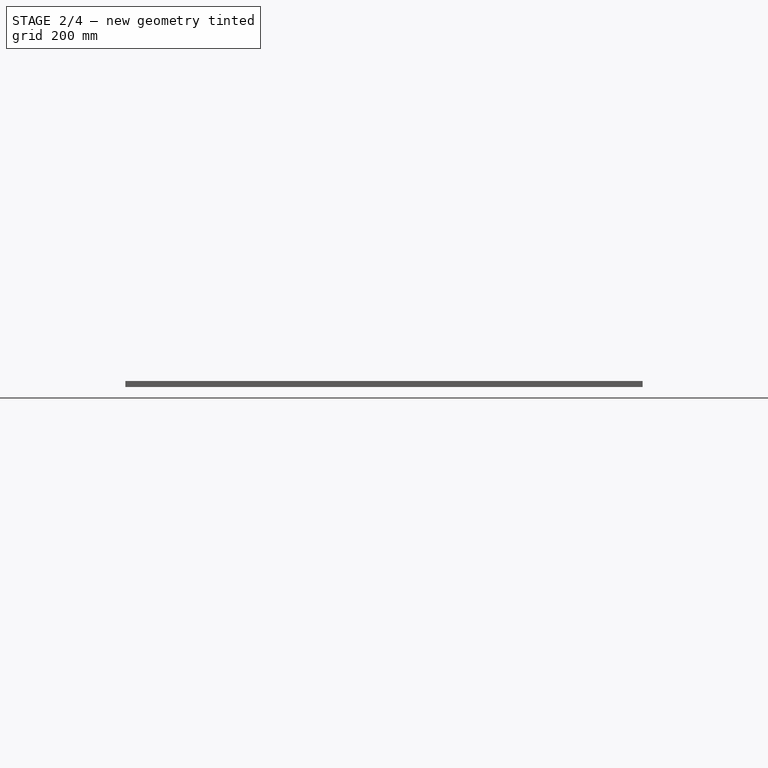
[diagram: stage 2 of 4 — front view after this stage's code; geometry added in this stage tinted green]
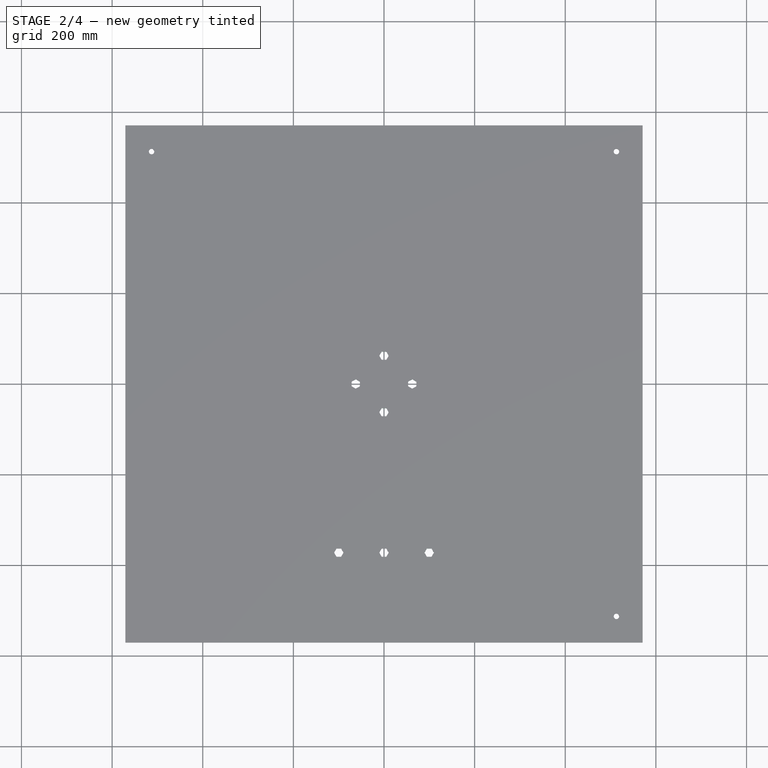
[diagram: stage 2 of 4 — top view after this stage's code; geometry added in this stage tinted green]
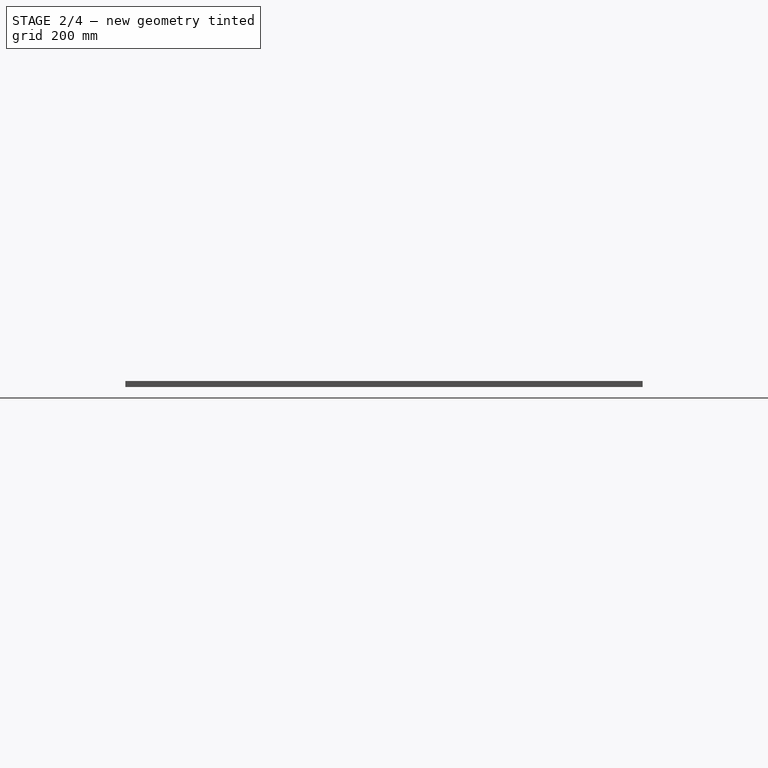
[diagram: stage 2 of 4 — right view after this stage's code; geometry added in this stage tinted green]
FEATURE [Sketcher::SketchObject] Sketch009  label="ThirdOuterBoltSketch"
  ArcFitTolerance = 0
  AttachmentSupport = -> [DatumPlane001]
  FullyConstrained = true
  MakeInternals = false
  MapMode = 5
  Placement = pos=(0,0,13) rot=(0,0,1;0rad)
  expr: Constraints[48] = Spreadsheet.LengthMiddleHoles
  expr: Constraints[52] = Spreadsheet.Inradius
  sketch-geometry (21):
    g0: LineSegment StartX=104.935 StartY=-363.237 StartZ=0 EndX=94.545 EndY=-363.237 EndZ=0
    g1: LineSegment StartX=94.545 StartY=-363.237 StartZ=0 EndX=89.35 EndY=-372.235 EndZ=0
    g2: LineSegment StartX=89.35 StartY=-372.235 StartZ=0 EndX=94.545 EndY=-381.233 EndZ=0
    g3: LineSegment StartX=94.545 StartY=-381.233 StartZ=0 EndX=104.935 EndY=-381.233 EndZ=0
    g4: LineSegment StartX=104.935 StartY=-381.233 StartZ=0 EndX=110.13 EndY=-372.235 EndZ=0
    g5: LineSegment StartX=110.13 StartY=-372.235 StartZ=0 EndX=104.935 EndY=-363.237 EndZ=0
    g6: Circle [constr] CenterX=99.74 CenterY=-372.235 CenterZ=0 NormalX=0 NormalY=0 NormalZ=1 AngleXU=0 Radius=10.39
    g7: LineSegment [constr] StartX=94.545 StartY=-363.237 StartZ=0 EndX=99.74 EndY=-372.235 EndZ=0
    g8: LineSegment [constr] StartX=99.74 StartY=-372.235 StartZ=0 EndX=104.935 EndY=-381.233 EndZ=0
    g9: LineSegment [constr] StartX=94.545 StartY=-381.233 StartZ=0 EndX=99.74 EndY=-372.235 EndZ=0
    g10: LineSegment [constr] StartX=99.74 StartY=-372.235 StartZ=0 EndX=104.935 EndY=-363.237 EndZ=0
    g11: LineSegment [constr] StartX=89.35 StartY=-372.235 StartZ=0 EndX=99.74 EndY=-372.235 EndZ=0
    g12: LineSegment [constr] StartX=99.74 StartY=-372.235 StartZ=0 EndX=110.13 EndY=-372.235 EndZ=0
    g13: LineSegment [constr] StartX=214.91 StartY=372.235 StartZ=0 EndX=-214.91 EndY=372.235 EndZ=0
    g14: LineSegment [constr] StartX=-214.91 StartY=372.235 StartZ=0 EndX=-429.82 EndY=0 EndZ=0
    g15: LineSegment [constr] StartX=-429.82 StartY=1.18e-14 StartZ=0 EndX=-214.91 EndY=-372.235 EndZ=0
    g16: LineSegment [constr] StartX=-214.91 StartY=-372.235 StartZ=0 EndX=214.91 EndY=-372.235 EndZ=0
    g17: LineSegment [constr] StartX=214.91 StartY=-372.235 StartZ=0 EndX=429.82 EndY=0 EndZ=0
    g18: LineSegment [constr] StartX=429.82 StartY=1.18e-14 StartZ=0 EndX=214.91 EndY=372.235 EndZ=0
    g19: Circle [constr] CenterX=0 CenterY=0 CenterZ=0 NormalX=0 NormalY=0 NormalZ=1 AngleXU=0 Radius=429.82
    g20: LineSegment [constr] StartX=0 StartY=0 StartZ=0 EndX=99.74 EndY=-372.235 EndZ=0
  constraints (51):
    c: Coincident(g0,g1)
    c: Coincident(g1,g2)
    c: Coincident(g2,g3)
    c: Coincident(g3,g4)
    c: Coincident(g4,g5)
    c: Coincident(g5,g0)
    c: PointOnObject(g0,g6)
    c: PointOnObject(g1,g6)
    c: PointOnObject(g2,g6)
    c: PointOnObject(g3,g6)
    c: PointOnObject(g4,g6)
    c: PointOnObject(g5,g6)
    c: Coincident(g0,g7)
    c: Coincident(g7,g6)
    c: Coincident(g7,g8)
    c: Coincident(g8,g3)
    c: Coincident(g2,g9)
    c: Coincident(g9,g7)
    c: Coincident(g9,g10)
    c: Coincident(g10,g0)
    c: Coincident(g1,g11)
    c: Coincident(g11,g7)
    c: Coincident(g11,g12)
    c: Coincident(g12,g4)
    c: Angle(g10,g7) = 1.0472
    c: Angle(g12,g10) = 1.0472
    c: Angle(g8,g12) = 1.0472
    c: Angle(g9,g8) = 1.0472
    c: Angle(g11,g9) = 1.0472
    c: Horizontal(g4,g1)
    c: Coincident(g13,g14)
    c: Coincident(g14,g15)
    c: Coincident(g15,g16)
    c: Coincident(g16,g17)
    c: Coincident(g17,g18)
    c: Coincident(g18,g13)
    c: Equal(g13, g14-g18) x5
    c: PointOnObject(g13,g19)
    c: PointOnObject(g14,g19)
    c: PointOnObject(g15,g19)
    c: PointOnObject(g16,g19)
    c: PointOnObject(g17,g19)
    c: PointOnObject(g18,g19)
    c: Coincident(g19,g-1)
    c: Radius(g19) = 429.82
    c: Horizontal(g14,g17)
    c: Coincident(g20,g-1)
    c: Coincident(g6,g20)
    c: Radius(g6) = 10.39
    c: PointOnObject(g6,g16)
    c: Angle(g-2,g20) = 3.40339
FEATURE [PartDesign::Pocket] Pocket005  label="ThirdOuterBoltPocket"
  BaseFeature = -> Pocket004
  Direction = (0,0,-1)
  Length = 5
  Length2 = 5
  Profile = -> Sketch009
  ReferenceAxis = -> Sketch009 [N_Axis]
  Refine = true
  Suppressed = false
  Type = 1
FEATURE [PartDesign::Pocket] Pocket  label="InnerBoltsPocket"
  BaseFeature = -> Pocket005
  Direction = (0,0,-1)
  Length = 5
  Length2 = 100
  Profile = -> Sketch
  Suppressed = false
  Type = 1
FEATURE [PartDesign::PolarPattern] PolarPattern  label="InnerBoltsPolarPattern"
  Angle = 360
  Axis = -> Z_Axis
  BaseFeature = -> Pocket
  Mode = 0
  Occurrences = 4
  Offset = 120
  Originals = -> [Pocket]
  Suppressed = false
  TransformMode = 0
  expr: Occurrences = Spreadsheet.StatorMoldIslandNumberOfBolts
FEATURE [PartDesign::Body] Body  label="Stator_Mold_BoltHeadLayer"
  AllowCompound = false
  BaseFeature = -> Binder
  Group = -> [BaseFeature,DatumPlane001,Sketch006,Pocket002,Sketch008,Pocket004,Sketch009,Pocket005,Sketch,Pocket,PolarPattern,PolarPattern001,PolarPattern003,PolarPattern004,Sketch007,Pocket003,PolarPattern002]
  Openafpm_Flat = true
  Origin = -> Origin
  Tip = -> PolarPattern002
FEATURE [App::Part] Part002  label="Stator_Mold_BoltHeadLayer_Assembly"
  Group = -> [Binder,Body,Part001,Part004,Part007]
  Origin = -> Origin003

RESOLVED EXTERNAL PARTS (link-assembly join: the EXTERNAL_REF files above that resolve inside this repo's crawl, each included once):
---- part ../../../Fasteners/Fastener_Bolt_StatorMold.FCStd = doc fcstd_1490171d4254 ----
FCSTD DOCUMENT  (FreeCAD 0.20R29177 (Git))
Label: Fastener_Bolt_StatorMold
License: All rights reserved
LicenseURL: http://en.wikipedia.org/wiki/All_rights_reserved
objects: PartDesign::SubShapeBinder×1
note: 1 computed .brp shape members not serialized (recipe doc carries the construction recipe); baked Part::Feature solids carry a one-line shape summary decoded from their .brp
EXTERNAL_REF file=Fastener_Bolt_Tail_Vane.FCStd obj=Body

FEATURE [PartDesign::SubShapeBinder] Binder  label="Fastener_Bolt"
  BindCopyOnChange = 2
  BindMode = 0
  ClaimChildren = false
  Fuse = false
  MakeFace = true
  OffsetFill = false
  OffsetIntersection = false
  OffsetJoinType = 0
  OffsetOpenResult = false
  PartialLoad = false
  Relative = true
  Support = -> [<external Fastener_Bolt_Tail_Vane.FCStd>#Body]
  Variant = 2
  _Version = 2
---- part ../../../Fasteners/Fastener_HexNut_StatorMold.FCStd = doc fcstd_f0fe181fced9 ----
FCSTD DOCUMENT  (FreeCAD 0.20R29177 (Git))
Label: Fastener_HexNut_StatorMold
License: All rights reserved
LicenseURL: http://en.wikipedia.org/wiki/All_rights_reserved
objects: PartDesign::SubShapeBinder×1
note: 1 computed .brp shape members not serialized (recipe doc carries the construction recipe); baked Part::Feature solids carry a one-line shape summary decoded from their .brp
EXTERNAL_REF file=Fastener_HexNut.FCStd obj=Body

FEATURE [PartDesign::SubShapeBinder] Binder  label="Fastener_HexNut"
  BindCopyOnChange = 2
  BindMode = 0
  ClaimChildren = false
  Fuse = false
  MakeFace = true
  OffsetFill = false
  OffsetIntersection = false
  OffsetJoinType = 0
  OffsetOpenResult = false
  PartialLoad = false
  Relative = true
  Support = -> [<external Fastener_HexNut.FCStd>#Body]
  Variant = 2
  _Version = 2
---- part ../../../Master_of_Puppets.FCStd = doc fcstd_6404554055c4 (61625 chars; too large to inline — full recipe in that document) ----
---- part Stator_Mold_Base.FCStd = doc fcstd_d0ba9c10f7cb ----
FCSTD DOCUMENT  (FreeCAD 0.20R29177 (Git))
Label: Stator_Mold_Base
License: All rights reserved
LicenseURL: http://en.wikipedia.org/wiki/All_rights_reserved
objects: App::Link×6, App::Part×3, Sketcher::SketchObject×2, PartDesign::Pad×1, PartDesign::Pocket×1, Spreadsheet::Sheet×1, PartDesign::Body×1
note: 7 computed .brp shape members not serialized (recipe doc carries the construction recipe); baked Part::Feature solids carry a one-line shape summary decoded from their .brp
EXTERNAL_REF file=../../../Master_of_Puppets.FCStd obj=Alternator
EXTERNAL_REF file=../../../Master_of_Puppets.FCStd obj=Fastener
EXTERNAL_REF file=../../../Master_of_Puppets.FCStd obj=Spreadsheet
EXTERNAL_REF file=../../../Fasteners/Fastener_Bolt_Locating.FCStd obj=Binder
EXTERNAL_REF file=../../../Fasteners/Fastener_Washer_StatorMold.FCStd obj=Tube

FEATURE [Sketcher::SketchObject] Sketch
  AttachmentOffset = pos=(0,-12.5,0) rot=(0,0,1;0rad)
  FullyConstrained = true
  MapMode = 5
  Placement = pos=(0,-12.5,0) rot=(0,0,1;0rad)
  Support = -> [XY_Plane001]
  expr: .AttachmentOffset.Base.y = Spreadsheet.SketchY
  expr: Constraints[15] = Spreadsheet.StatorMoldSideLength
  sketch-geometry (6):
    g0: LineSegment StartX=-296.825 StartY=296.825 StartZ=0 EndX=296.825 EndY=296.825 EndZ=0
    g1: LineSegment StartX=296.825 StartY=296.825 StartZ=0 EndX=296.825 EndY=-296.825 EndZ=0
    g2: LineSegment StartX=296.825 StartY=-296.825 StartZ=0 EndX=-296.825 EndY=-296.825 EndZ=0
    g3: LineSegment StartX=-296.825 StartY=-296.825 StartZ=0 EndX=-296.825 EndY=296.825 EndZ=0
    g4: LineSegment StartX=-296.825 StartY=296.825 StartZ=0 EndX=296.825 EndY=-296.825 EndZ=0
    g5: LineSegment StartX=296.825 StartY=296.825 StartZ=0 EndX=-296.825 EndY=-296.825 EndZ=0
  constraints (16):
    c: Coincident(g0,g1)
    c: Coincident(g1,g2)
    c: Coincident(g2,g3)
    c: Coincident(g3,g0)
    c: Horizontal(g0)
    c: Horizontal(g2)
    c: Vertical(g1)
    c: Vertical(g3)
    c: Coincident(g4,g0)
    c: Coincident(g4,g1)
    c: Coincident(g5,g0)
    c: Coincident(g5,g2)
    c: PointOnObject(g-1,g5)
    c: PointOnObject(g-1,g4)
    c: Equal(g0,g3)
    c: Distance(g0) = 593.65
FEATURE [PartDesign::Pad] Pad
  AllowMultiFace = false
  Direction = (0,0,1)
  Length = 13
  Length2 = 100
  Profile = -> Sketch
  Type = 0
  expr: Length = Spreadsheet.StatorThickness
FEATURE [Sketcher::SketchObject] Sketch001
  AttachmentOffset = pos=(0,-12.5,0) rot=(0,0,1;0rad)
  FullyConstrained = true
  MapMode = 5
  Placement = pos=(0,-12.5,13) rot=(0,0,1;0rad)
  Support = -> [Pad]
  expr: .AttachmentOffset.Base.y = Spreadsheet.SketchY
  expr: Constraints[14] = Spreadsheet.StatorMoldBoltRadius
  expr: Constraints[5] = 45
  expr: Constraints[8] = Spreadsheet.DistanceOfLocatingHoleFromCenter
  sketch-geometry (6):
    g0: LineSegment StartX=-266.804 StartY=266.804 StartZ=0 EndX=0 EndY=0 EndZ=0
    g1: LineSegment StartX=0 StartY=0 StartZ=0 EndX=266.804 EndY=266.804 EndZ=0
    g2: LineSegment StartX=0 StartY=0 StartZ=0 EndX=266.804 EndY=-266.804 EndZ=0
    g3: Circle CenterX=-266.804 CenterY=266.804 CenterZ=0 NormalX=0 NormalY=0 NormalZ=1 AngleXU=0 Radius=6
    g4: Circle CenterX=266.804 CenterY=266.804 CenterZ=0 NormalX=0 NormalY=0 NormalZ=1 AngleXU=0 Radius=6
    g5: Circle CenterX=266.804 CenterY=-266.804 CenterZ=0 NormalX=0 NormalY=0 NormalZ=1 AngleXU=0 Radius=6
  constraints (15):
    c: Coincident(g0,g-1)
    c: Coincident(g0,g1)
    c: Coincident(g-1,g2)
    c: Parallel(g0,g2)
    c: Perpendicular(g2,g1)
    c: Angle(g-2,g0) = 0.785398
    c: Equal(g0,g1)
    c: Equal(g1,g2)
    c: Distance(g0) = 377.318
    c: Coincident(g3,g0)
    c: Coincident(g5,g2)
    c: Coincident(g4,g1)
    c: Equal(g3,g4)
    c: Equal(g4,g5)
    c: Radius(g3) = 6
FEATURE [PartDesign::Pocket] Pocket
  AllowMultiFace = false
  BaseFeature = -> Pad
  Direction = (0,0,-1)
  Length = 5
  Length2 = 100
  Profile = -> Sketch001
  Type = 1
FEATURE [Spreadsheet::Sheet] Spreadsheet
  cells = A1=Inputs; A2=Spreadsheet; A3=StatorThickness; B3(StatorThickness)==Master_of_Puppets#Spreadsheet.StatorThickness; A4=StatorMoldBoltDiameter; B4(StatorMoldBoltDiameter)==Master_of_Puppets#Alternator.StatorMoldBoltDiameter; A5=RotorDiskRadius; B5(RotorDiskRadius)==Master_of_Puppets#Spreadsheet.RotorDiskRadius; A6=Alternator; A7=StatorHolesCircumradius; B7(StatorHolesCircumradius)==Master_of_Puppets#Alternator.StatorHolesCircumradius; A8=EarSize; B8(EarSize)==Master_of_Puppets#Alternator.EarSize; A9=SketchY; B9(SketchY)==Master_of_Puppets#Alternator.SketchY; A10=StatorMoldSideLength; B10(StatorMoldSideLength)==Master_of_Puppets#Alternator.StatorMoldSideLength; A11=DistanceOfLocatingHoleFromCenter; B11(DistanceOfLocatingHoleFromCenter)==Master_of_Puppets#Alternator.DistanceOfLocatingHoleFromCenter; A12=LocatingBolt1X; B12(LocatingBolt1X)==Master_of_Puppets#Alternator.LocatingBolt1X; A13=LocatingBolt1Y; B13(LocatingBolt1Y)==Master_of_Puppets#Alternator.LocatingBolt1Y; A14=LocatingBolt2X; B14(LocatingBolt2X)==Master_of_Puppets#Alternator.LocatingBolt2X; A15=LocatingBolt2Y; B15(LocatingBolt2Y)==Master_of_Puppets#Alternator.LocatingBolt2Y; A16=LocatingBolt3X; B16(LocatingBolt3X)==Master_of_Puppets#Alternator.LocatingBolt3X; A17=LocatingBolt3Y; B17(LocatingBolt3Y)==Master_of_Puppets#Alternator.LocatingBolt3Y; A18=Fastener; A19=WasherThickness; B19(WasherThickness)==Master_of_Puppets#Fastener.WasherThickness; A20=Calculated; A21=StatorMoldBoltRadius; B21(StatorMoldBoltRadius)==StatorMoldBoltDiameter / 2; A22=BoltZ; B22(BoltZ)==-WasherThickness; A23=NutZ; B23(NutZ)==StatorThickness * 5; A24=WasherZ; B24(WasherZ)==-WasherThickness
FEATURE [PartDesign::Body] PocketBody  label="Stator_Mold_Base"
  Group = -> [Sketch,Pad,Sketch001,Pocket]
  Openafpm_Flat = true
  Origin = -> Origin001
  Tip = -> Pocket
FEATURE [App::Link] Link001  label="Fastener_Bolt2"
  LinkPlacement = pos=(266.804,254.304,-2.5) rot=(0,0,1;0rad)
  LinkedObject = -> Link
  Placement = pos=(266.804,254.304,-2.5) rot=(0,0,1;0rad)
  expr: .Placement.Base.x = Spreadsheet.LocatingBolt2X
  expr: .Placement.Base.y = Spreadsheet.LocatingBolt2Y
  expr: .Placement.Base.z = Spreadsheet.BoltZ
FEATURE [App::Link] Link002  label="Fastener_Bolt3"
  LinkPlacement = pos=(266.804,-279.304,-2.5) rot=(0,0,1;0rad)
  LinkedObject = -> Link001
  Placement = pos=(266.804,-279.304,-2.5) rot=(0,0,1;0rad)
  expr: .Placement.Base.x = Spreadsheet.LocatingBolt3X
  expr: .Placement.Base.y = Spreadsheet.LocatingBolt3Y
  expr: .Placement.Base.z = Spreadsheet.BoltZ
FEATURE [App::Link] Link  label="Fastener_Bolt1"
  LinkPlacement = pos=(-266.804,254.304,-2.5) rot=(0,0,1;0rad)
  LinkedObject = -> <external ../../../Fasteners/Fastener_Bolt_Locating.FCStd>#Binder
  Placement = pos=(-266.804,254.304,-2.5) rot=(0,0,1;0rad)
  Scale = -1
  ScaleVector = (-1,-1,-1)
  expr: .Placement.Base.x = Spreadsheet.LocatingBolt1X
  expr: .Placement.Base.y = Spreadsheet.LocatingBolt1Y
  expr: .Placement.Base.z = Spreadsheet.BoltZ
FEATURE [App::Part] Part  label="LocatingBolts"
  Group = -> [Link,Link001,Link002]
  Origin = -> Origin
FEATURE [App::Link] Link003  label="Washer1"
  LinkPlacement = pos=(-266.804,254.304,-2.5) rot=(0,0,1;0rad)
  LinkedObject = -> <external ../../../Fasteners/Fastener_Washer_StatorMold.FCStd>#Tube
  Placement = pos=(-266.804,254.304,-2.5) rot=(0,0,1;0rad)
  expr: .Placement.Base.x = Spreadsheet.LocatingBolt1X
  expr: .Placement.Base.y = Spreadsheet.LocatingBolt1Y
  expr: .Placement.Base.z = Spreadsheet.WasherZ
FEATURE [App::Link] Link004  label="Washer2"
  LinkPlacement = pos=(266.804,254.304,-2.5) rot=(0,0,1;0rad)
  LinkedObject = -> Link003
  Placement = pos=(266.804,254.304,-2.5) rot=(0,0,1;0rad)
  expr: .Placement.Base.x = Spreadsheet.LocatingBolt2X
  expr: .Placement.Base.y = Spreadsheet.LocatingBolt2Y
  expr: .Placement.Base.z = Spreadsheet.WasherZ
FEATURE [App::Link] Link005  label="Washer3"
  LinkPlacement = pos=(266.804,-279.304,-2.5) rot=(0,0,1;0rad)
  LinkedObject = -> Link004
  Placement = pos=(266.804,-279.304,-2.5) rot=(0,0,1;0rad)
  expr: .Placement.Base.x = Spreadsheet.LocatingBolt3X
  expr: .Placement.Base.y = Spreadsheet.LocatingBolt3Y
  expr: .Placement.Base.z = Spreadsheet.WasherZ
FEATURE [App::Part] Part002  label="LocatingWashers"
  Group = -> [Link003,Link004,Link005]
  Origin = -> Origin003
FEATURE [App::Part] Part001  label="Stator_Mold_Base_Assembly"
  Group = -> [PocketBody,Part,Part002]
  Origin = -> Origin002
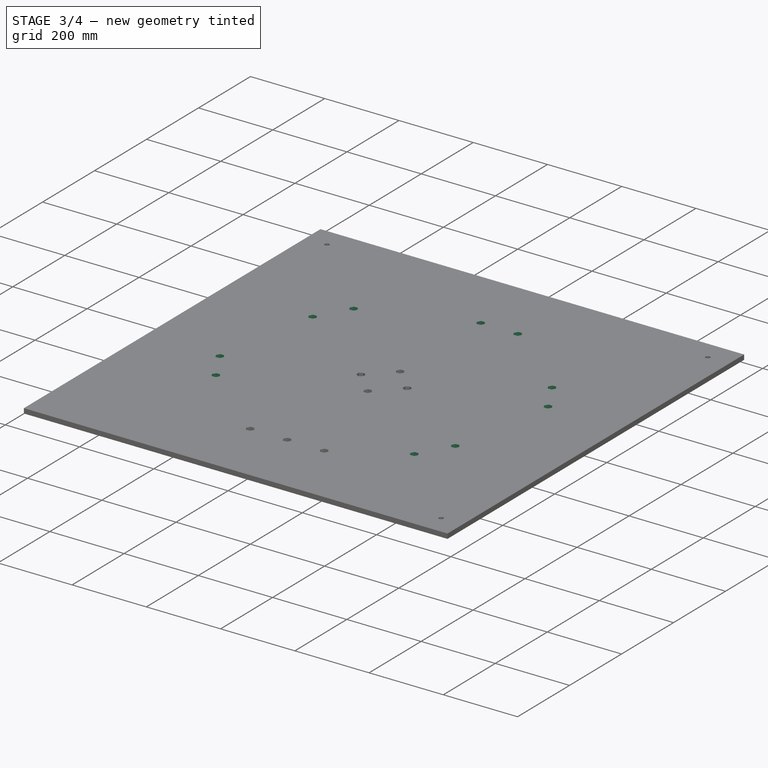
[diagram: stage 3 of 4 — iso view after this stage's code; geometry added in this stage tinted green]
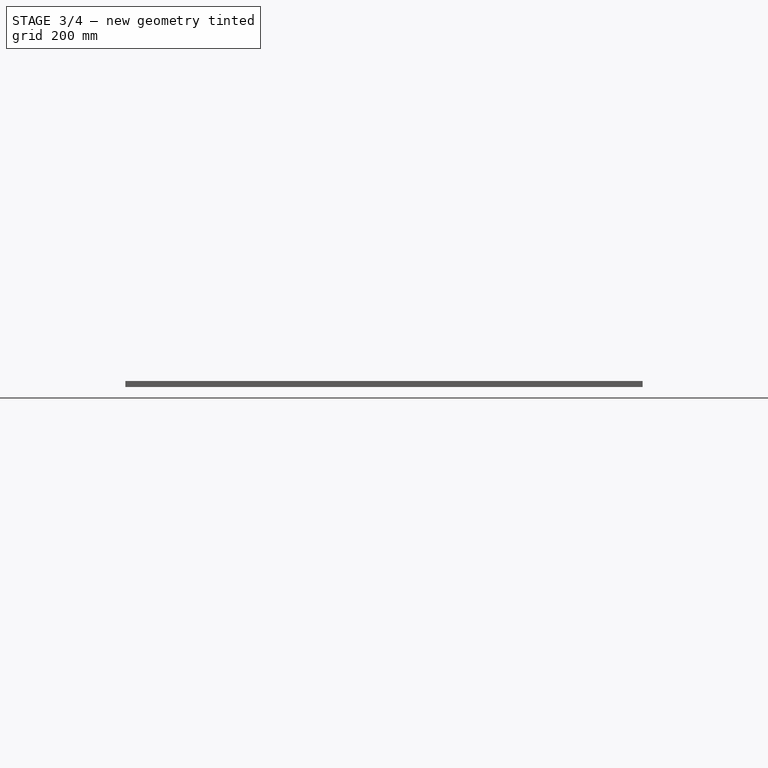
[diagram: stage 3 of 4 — front view after this stage's code; geometry added in this stage tinted green]
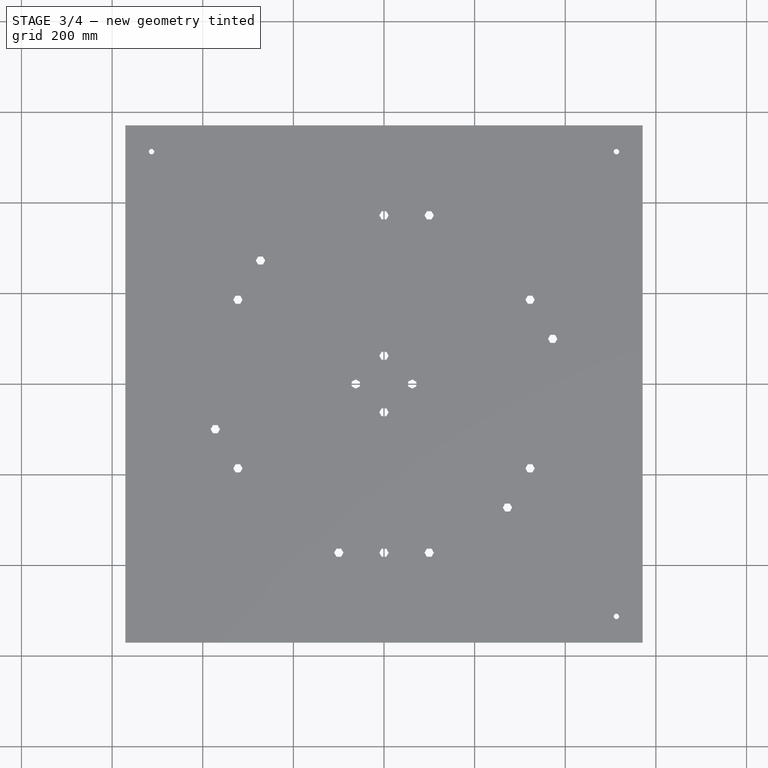
[diagram: stage 3 of 4 — top view after this stage's code; geometry added in this stage tinted green]
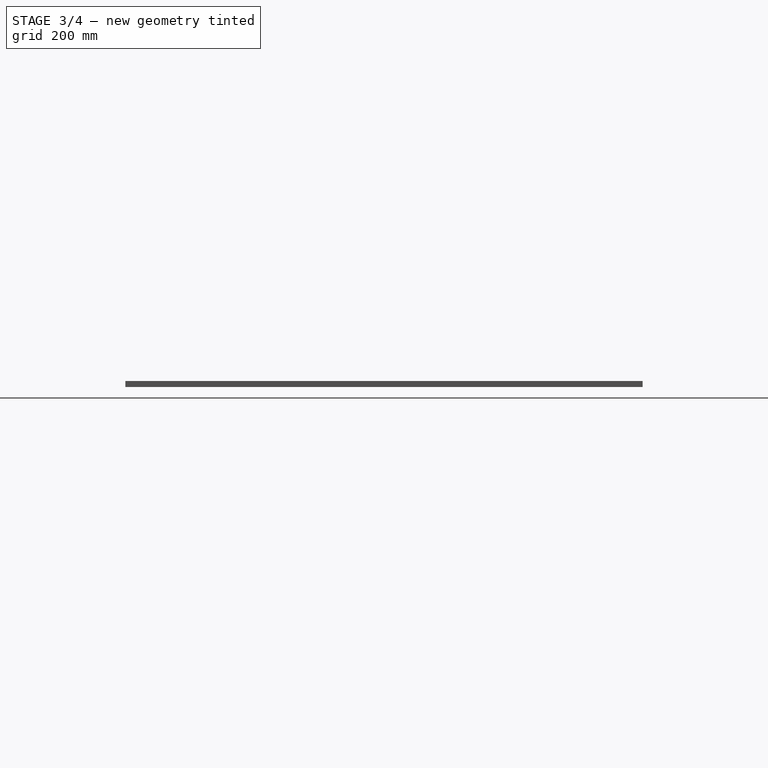
[diagram: stage 3 of 4 — right view after this stage's code; geometry added in this stage tinted green]
FEATURE [PartDesign::PolarPattern] PolarPattern001  label="FirstOuterBoltsPolarPattern"
  Angle = 360
  Axis = -> Sketch006 [N_Axis]
  BaseFeature = -> PolarPattern
  Mode = 0
  Occurrences = 6
  Offset = 120
  Originals = -> [Pocket002]
  Suppressed = false
  TransformMode = 0
  expr: Angle = Spreadsheet.FirstOuterBoltHolePolarPatternAngle
  expr: Occurrences = Spreadsheet.FirstOuterBoltHolePolarPatternNumberOfOccurrences
FEATURE [PartDesign::PolarPattern] PolarPattern003  label="SecondOuterBoltsPolarPattern"
  Angle = 360
  Axis = -> Sketch008 [N_Axis]
  BaseFeature = -> PolarPattern001
  Mode = 0
  Occurrences = 6
  Offset = 120
  Originals = -> [Pocket004]
  Refine = true
  Suppressed = false
  TransformMode = 0
  expr: Angle = Spreadsheet.SecondOuterBoltHolePolarPatternAngle
  expr: Occurrences = Spreadsheet.SecondOuterBoltHolePolarPatternNumberOfOccurrences
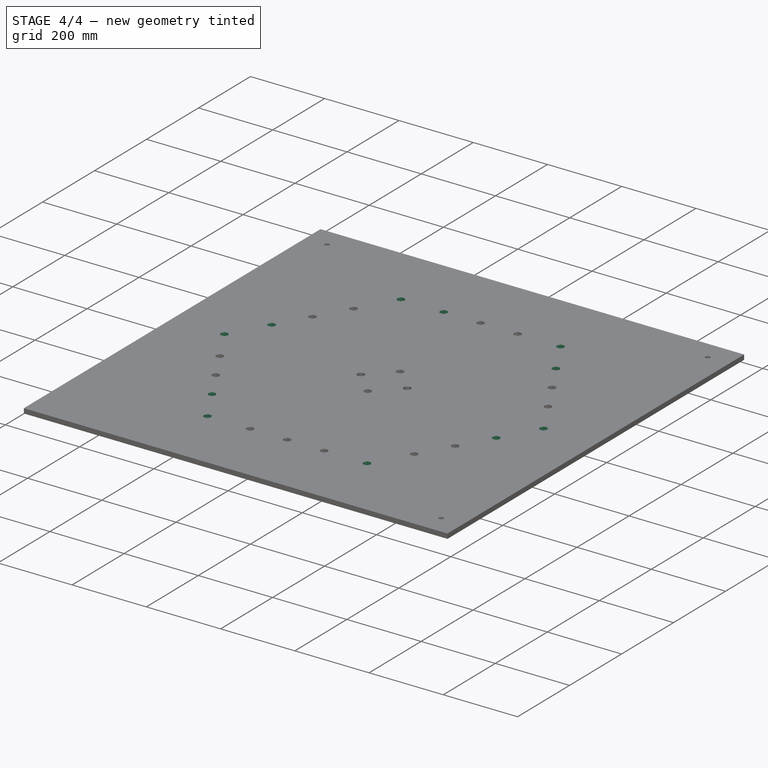
[diagram: stage 4 of 4 — iso view after this stage's code; geometry added in this stage tinted green]
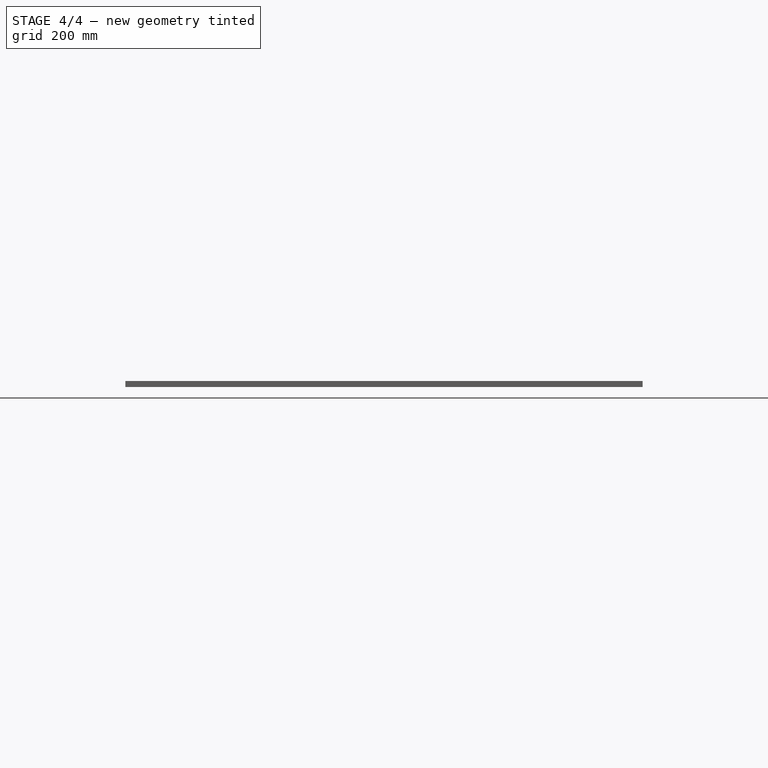
[diagram: stage 4 of 4 — front view after this stage's code; geometry added in this stage tinted green]
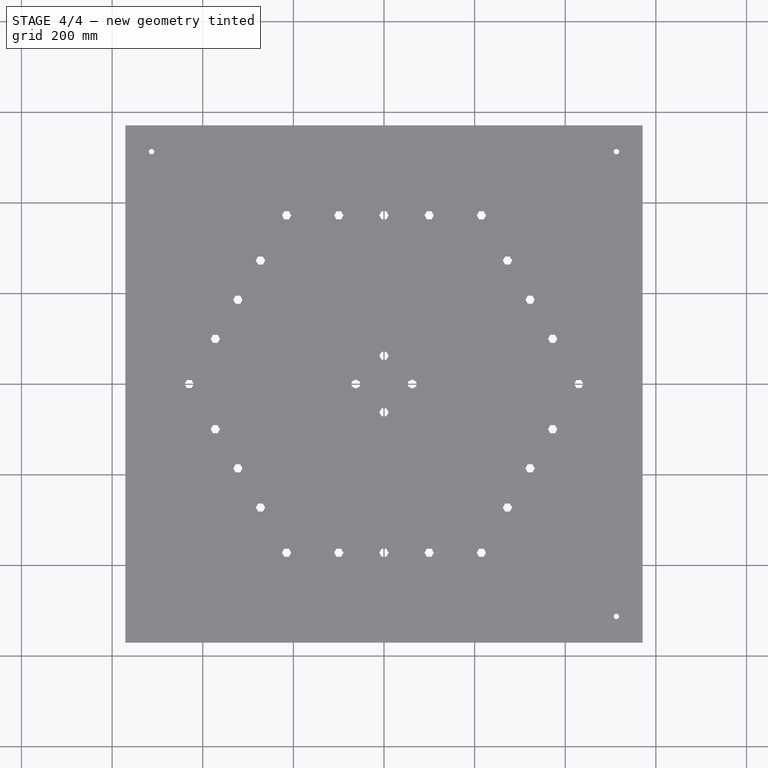
[diagram: stage 4 of 4 — top view after this stage's code; geometry added in this stage tinted green]
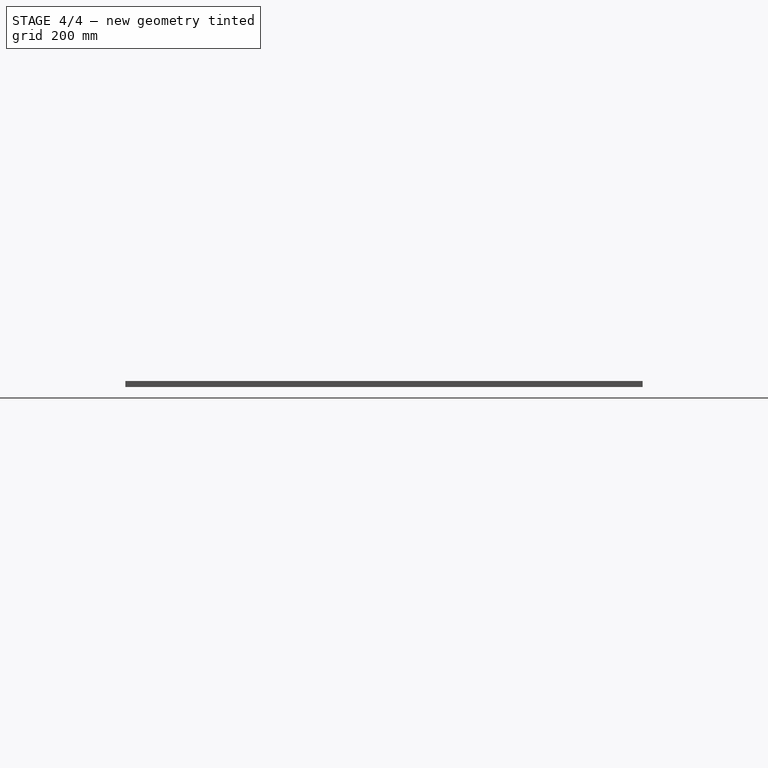
[diagram: stage 4 of 4 — right view after this stage's code; geometry added in this stage tinted green]
FEATURE [PartDesign::PolarPattern] PolarPattern004  label="ThirdOuterBoltsPolarPattern"
  Angle = 360
  Axis = -> Sketch009 [N_Axis]
  BaseFeature = -> PolarPattern003
  Mode = 0
  Occurrences = 6
  Offset = 120
  Originals = -> [Pocket005]
  Refine = true
  Suppressed = false
  TransformMode = 0
FEATURE [PartDesign::Pocket] Pocket003  label="CornerBoltPocket"
  BaseFeature = -> PolarPattern004
  Direction = (0,0,-1)
  Length = 5
  Length2 = 100
  Profile = -> Sketch007
  Suppressed = false
  Type = 1
FEATURE [PartDesign::PolarPattern] PolarPattern002  label="CornerBoltPolarPattern"
  Angle = 360
  Axis = -> Sketch007 [N_Axis]
  BaseFeature = -> Pocket003
  Mode = 0
  Occurrences = 6
  Offset = 120
  Originals = -> [Pocket003]
  Suppressed = false
  TransformMode = 0
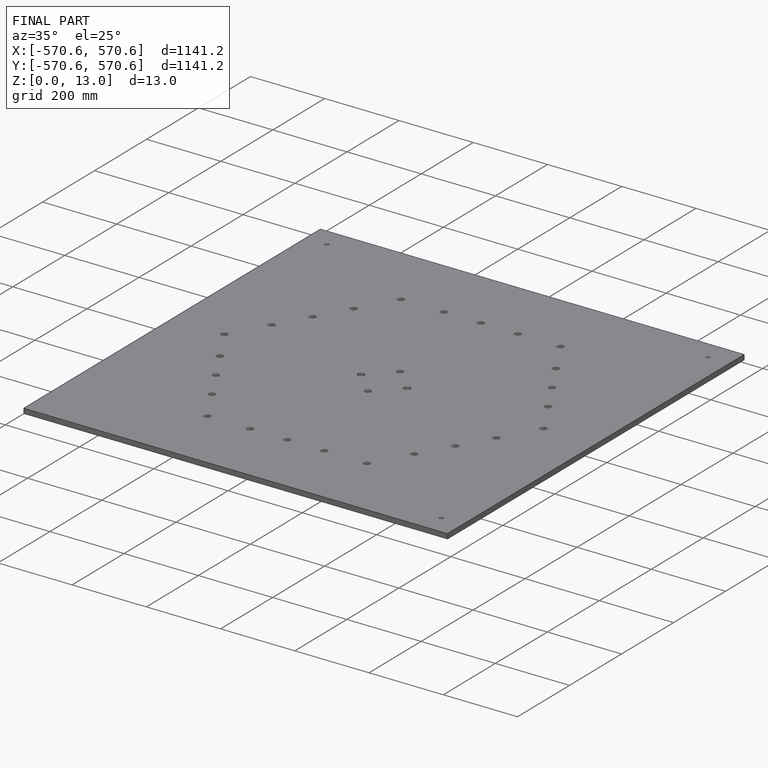
[diagram: finished part — iso view with bounding-box wireframe]
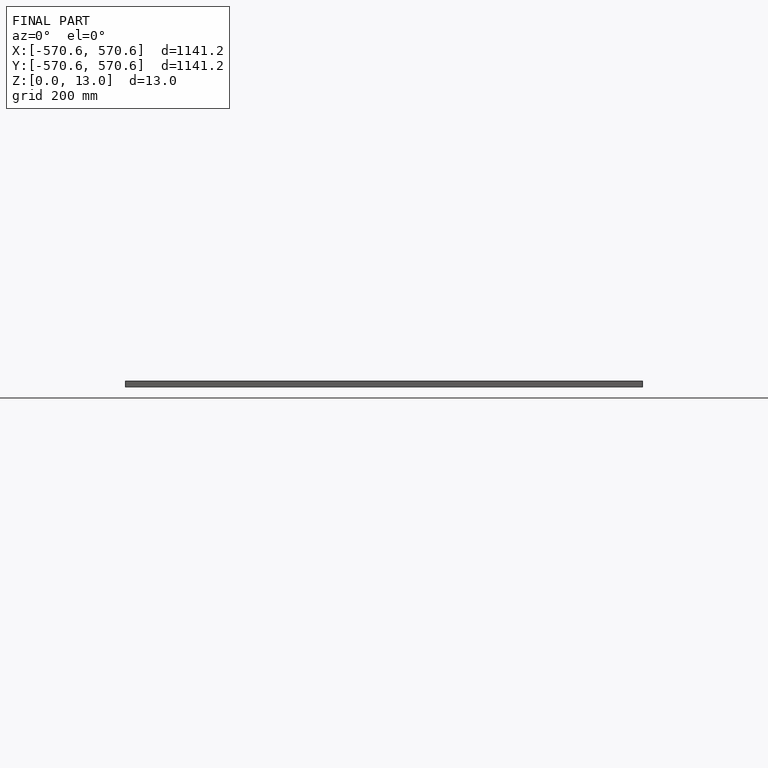
[diagram: finished part — front view with bounding-box wireframe]
